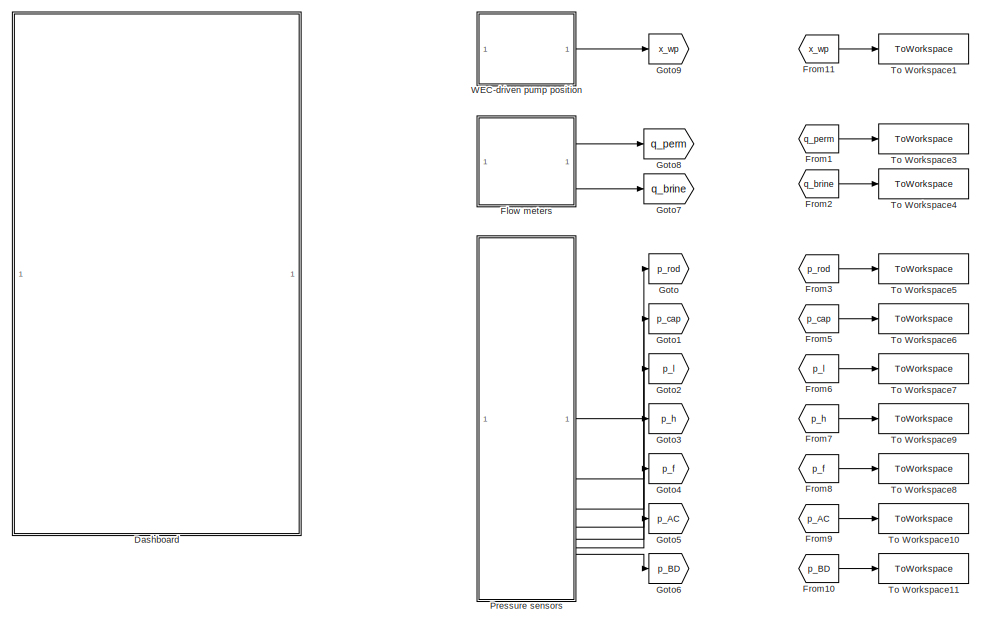
[diagram: root canvas - part 1/2, full width, top band]
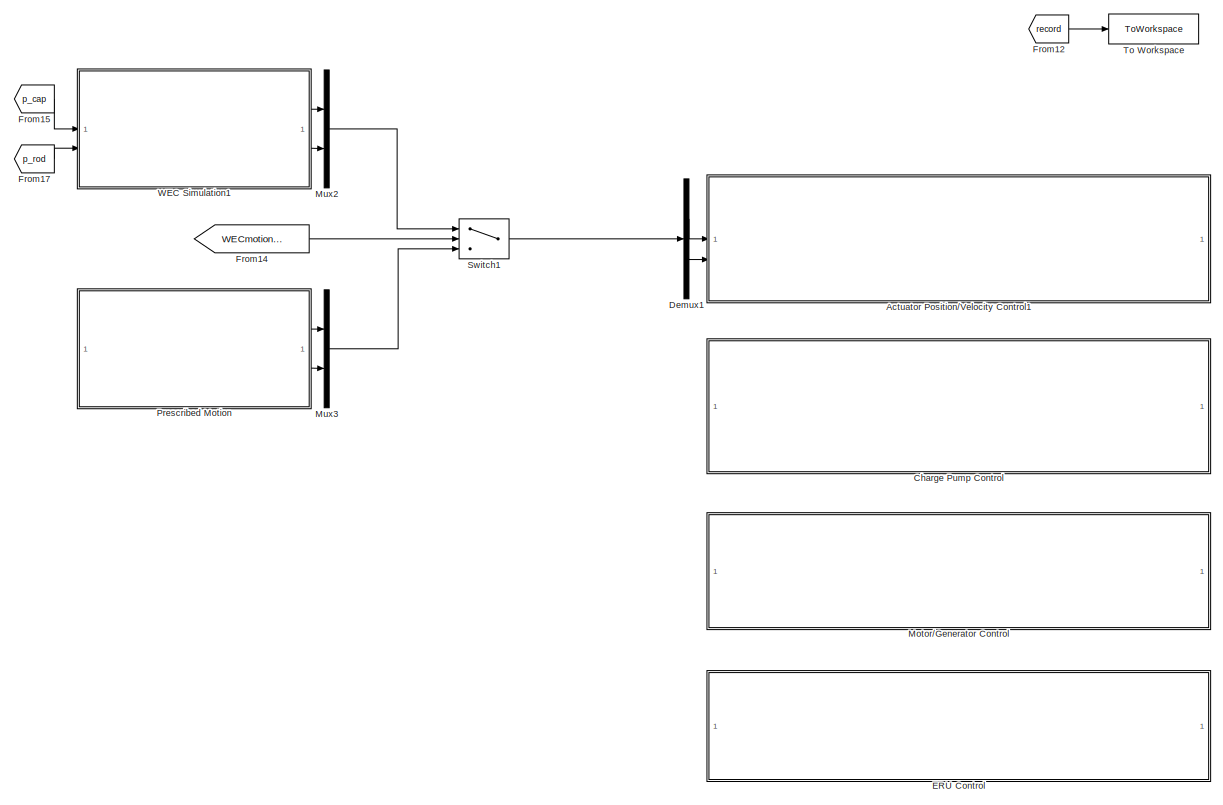
[diagram: root canvas - part 2/2, full width, bottom band]
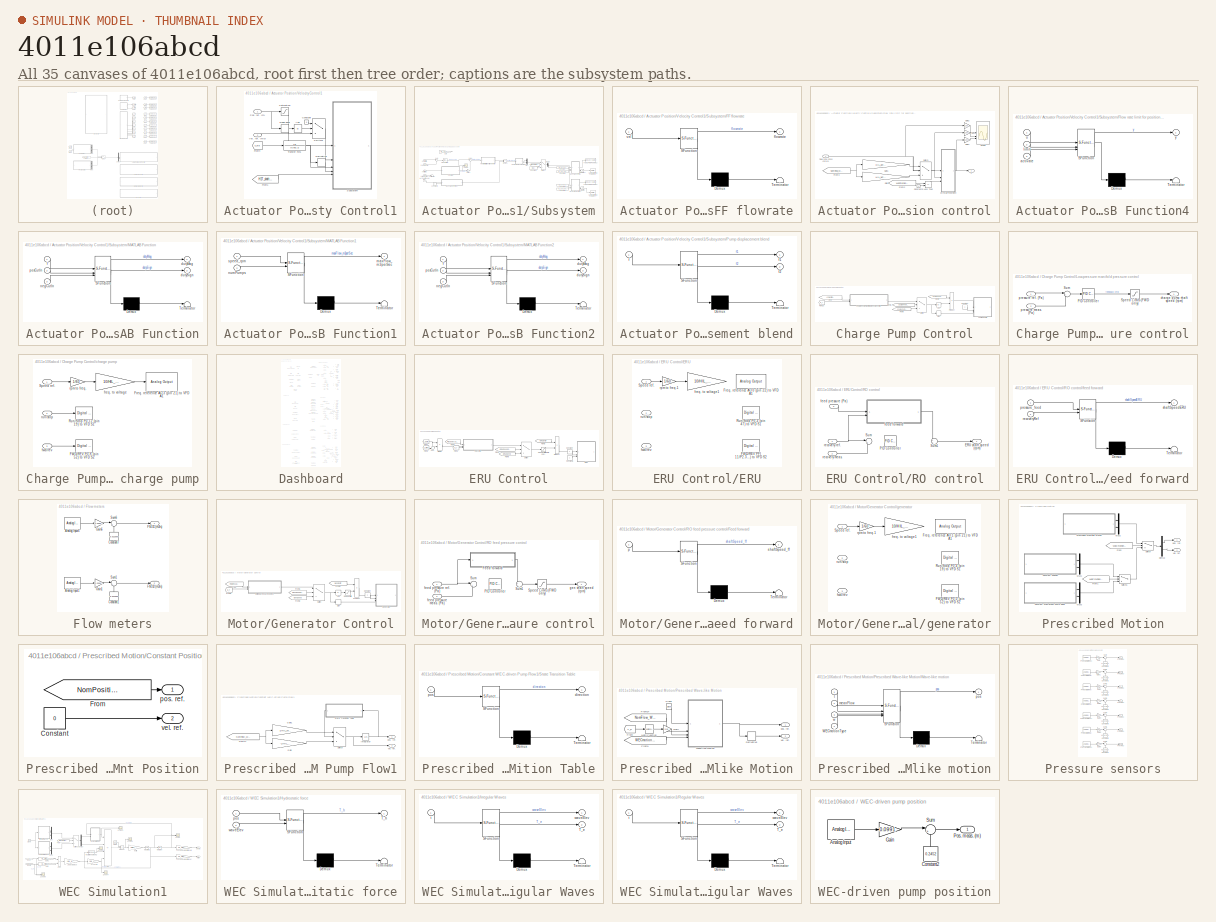
[diagram: thumbnail index - all 35 canvases of the model, root first then tree order]
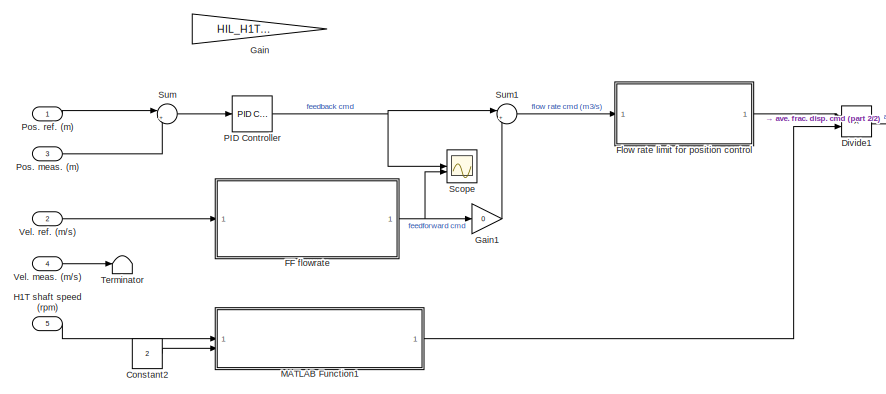
[diagram: Actuator Position/Velocity Control1/Subsystem - part 1/2, left side, full height]
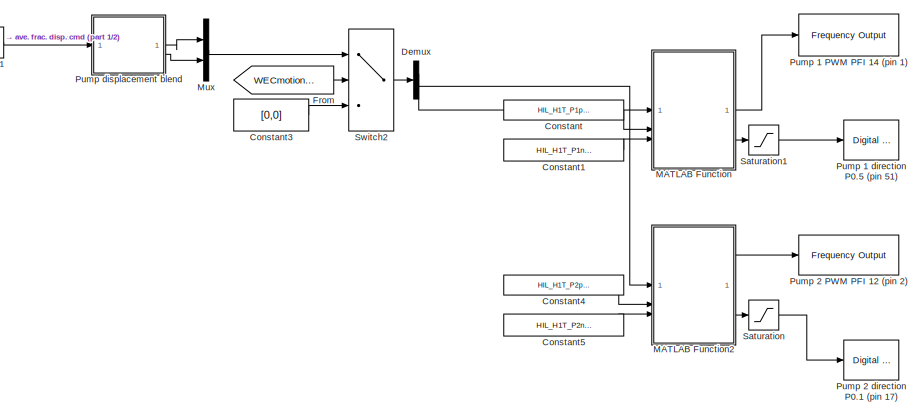
[diagram: Actuator Position/Velocity Control1/Subsystem - part 2/2, right side, full height]
MODEL slx_4011e106abcd
KIND model
CONFIG AbsTol = auto
CONFIG EnableMultiTasking = off
CONFIG FixedStep = 0.001
CONFIG InitFcn = addpath('SCADA'); \ninitFcn_SCADA;
CONFIG MaxStep = auto
CONFIG MinStep = auto
CONFIG RelTol = 1e-3
CONFIG SampleTimeConstraint = Unconstrained
CONFIG SolverName = FixedStepAuto
CONFIG StartTime = 0.0
CONFIG StopTime = inf
WORKSPACE source: mxarray member
WORKSPACE RadSysCoeff: Simulink.Parameter (value not decoded)
BLOCK [SubSystem] Actuator Position//Velocity Control1
BLOCK [Abs] Actuator Position//Velocity Control1/Abs
  SaturateOnIntegerOverflow = off
BLOCK [Constant] Actuator Position//Velocity Control1/Constant
  Value = 0
BLOCK [DeadZone] Actuator Position//Velocity Control1/Dead Zone
  LowerValue = HIL_WECpump_negativeCtrlLimit
  UpperValue = HIL_WECpump_positiveCtrlLimit
BLOCK [Derivative] Actuator Position//Velocity Control1/Derivative
BLOCK [From] Actuator Position//Velocity Control1/From1
  GotoTag = H1T_shaftSpeed
  TagVisibility = global
BLOCK [From] Actuator Position//Velocity Control1/From4
  GotoTag = x_wp
  TagVisibility = global
BLOCK [Inport] Actuator Position//Velocity Control1/Pos. ref. (m)
BLOCK [Saturate] Actuator Position//Velocity Control1/Saturation
  LowerLimit = HIL_WECpump_negativeCtrlLimit
  UpperLimit = HIL_WECpump_positiveCtrlLimit
BLOCK [SubSystem] Actuator Position//Velocity Control1/Subsystem
BLOCK [Constant] Actuator Position//Velocity Control1/Subsystem/Constant
  Value = HIL_H1T_P1posCutIn
BLOCK [Constant] Actuator Position//Velocity Control1/Subsystem/Constant1
  Value = HIL_H1T_P1negCutIn
BLOCK [Constant] Actuator Position//Velocity Control1/Subsystem/Constant2
  Value = 2
BLOCK [Constant] Actuator Position//Velocity Control1/Subsystem/Constant3
  Value = [0,0]
BLOCK [Constant] Actuator Position//Velocity Control1/Subsystem/Constant4
  Value = HIL_H1T_P2posCutIn
BLOCK [Constant] Actuator Position//Velocity Control1/Subsystem/Constant5
  Value = HIL_H1T_P2negCutIn
BLOCK [Demux] Actuator Position//Velocity Control1/Subsystem/Demux
  Outputs = 2
BLOCK [Product] Actuator Position//Velocity Control1/Subsystem/Divide1
  Inputs = */
BLOCK [SubSystem] Actuator Position//Velocity Control1/Subsystem/FF flowrate
  ErrorFcn = Stateflow.Translate.translate
  PermitHierarchicalResolution = ExplicitOnly
  SFBlockType = MATLAB Function
  TreatAsAtomicUnit = on
BLOCK [Demux] Actuator Position//Velocity Control1/Subsystem/FF flowrate/ Demux 
  Outputs = 1
BLOCK [S-Function] Actuator Position//Velocity Control1/Subsystem/FF flowrate/ SFunction 
  EnableBusSupport = off
  FunctionName = sf_sfun
  Parameters = HIL_act_A_cap,HIL_act_A_rod
  PortCounts = [1 2]
  SFcnIsStateOwnerBlock = off
  SFunctionDeploymentMode = off
  Tag = Stateflow S-Function 11
BLOCK [Terminator] Actuator Position//Velocity Control1/Subsystem/FF flowrate/ Terminator 
BLOCK [Outport] Actuator Position//Velocity Control1/Subsystem/FF flowrate/flowrate
BLOCK [Inport] Actuator Position//Velocity Control1/Subsystem/FF flowrate/vel
BLOCK [SubSystem] Actuator Position//Velocity Control1/Subsystem/Flow rate limit for position control
BLOCK [Constant] Actuator Position//Velocity Control1/Subsystem/Flow rate limit for position control/Constant6
BLOCK [From] Actuator Position//Velocity Control1/Subsystem/Flow rate limit for position control/From2
  GotoTag = WECmotionType
  TagVisibility = global
BLOCK [From] Actuator Position//Velocity Control1/Subsystem/Flow rate limit for position control/From3
  GotoTag = NomFlow_WECpump
  TagVisibility = global
BLOCK [Gain] Actuator Position//Velocity Control1/Subsystem/Flow rate limit for position control/Gain
  Gain = HIL_act_A_rod/HIL_WECpump_A_rod
BLOCK [Gain] Actuator Position//Velocity Control1/Subsystem/Flow rate limit for position control/Gain1
  Gain = HIL_act_A_cap/HIL_WECpump_A_cap
BLOCK [Gain] Actuator Position//Velocity Control1/Subsystem/Flow rate limit for position control/Gain2
  Gain = 1e3
BLOCK [Gain] Actuator Position//Velocity Control1/Subsystem/Flow rate limit for position control/Gain3
  Gain = 1e3
BLOCK [Gain] Actuator Position//Velocity Control1/Subsystem/Flow rate limit for position control/Gain4
  Gain = 1e3
BLOCK [RelationalOperator] Actuator Position//Velocity Control1/Subsystem/Flow rate limit for position control/Less Than
  InputSameDT = off
  Operator = ==
  OutDataTypeStr = boolean
  RndMeth = Simplest
BLOCK [SubSystem] Actuator Position//Velocity Control1/Subsystem/Flow rate limit for position control/MATLAB Function4
  ErrorFcn = Stateflow.Translate.translate
  PermitHierarchicalResolution = ExplicitOnly
  SFBlockType = MATLAB Function
  TreatAsAtomicUnit = on
BLOCK [Demux] Actuator Position//Velocity Control1/Subsystem/Flow rate limit for position control/MATLAB Function4/ Demux 
  Outputs = 1
BLOCK [S-Function] Actuator Position//Velocity Control1/Subsystem/Flow rate limit for position control/MATLAB Function4/ SFunction 
  EnableBusSupport = off
  FunctionName = sf_sfun
  PortCounts = [3 2]
  SFcnIsStateOwnerBlock = off
  SFunctionDeploymentMode = off
  Tag = Stateflow S-Function 12
BLOCK [Terminator] Actuator Position//Velocity Control1/Subsystem/Flow rate limit for position control/MATLAB Function4/ Terminator 
BLOCK [Inport] Actuator Position//Velocity Control1/Subsystem/Flow rate limit for position control/MATLAB Function4/activate
  Port = 3
BLOCK [Inport] Actuator Position//Velocity Control1/Subsystem/Flow rate limit for position control/MATLAB Function4/limit
  Port = 2
BLOCK [Inport] Actuator Position//Velocity Control1/Subsystem/Flow rate limit for position control/MATLAB Function4/u
BLOCK [Outport] Actuator Position//Velocity Control1/Subsystem/Flow rate limit for position control/MATLAB Function4/y
BLOCK [Scope] Actuator Position//Velocity Control1/Subsystem/Flow rate limit for position control/Scope
  DataLoggingDecimateData = on
  DataLoggingDecimation = 1
  DataLoggingLimitDataPoints = on
  DataLoggingSaveFormat = Array
  DataLoggingVariableName = ScopeData1
  Floating = off
  GraphicalSettings = {"GraphicalSettings":{"LegacySettings":true,"Style":{"Style":{"ActiveDisplayYMaximum":"0.93525","ActiveDisplayYMinimum":"-0.19035","MinimizeControls":"false","PlotType":"Auto"}}}}
  NumInputPorts = 3
  WasSavedAsWebScope = on
BLOCK [Switch] Actuator Position//Velocity Control1/Subsystem/Flow rate limit for position control/Switch
  Criteria = u2 > Threshold
  InputSameDT = off
  SaturateOnIntegerOverflow = off
BLOCK [Inport] Actuator Position//Velocity Control1/Subsystem/Flow rate limit for position control/flow rate cmd (m3//s)
BLOCK [Outport] Actuator Position//Velocity Control1/Subsystem/Flow rate limit for position control/y
BLOCK [From] Actuator Position//Velocity Control1/Subsystem/From
  GotoTag = WECmotionOnOff
  TagVisibility = global
BLOCK [Gain] Actuator Position//Velocity Control1/Subsystem/Gain
  Commented = on
  Gain = HIL_H1T_kp
BLOCK [Gain] Actuator Position//Velocity Control1/Subsystem/Gain1
  Gain = 0
BLOCK [Inport] Actuator Position//Velocity Control1/Subsystem/H1T shaft speed (rpm)
  Port = 5
BLOCK [SubSystem] Actuator Position//Velocity Control1/Subsystem/MATLAB Function
  ErrorFcn = Stateflow.Translate.translate
  PermitHierarchicalResolution = ExplicitOnly
  SFBlockType = MATLAB Function
  TreatAsAtomicUnit = on
BLOCK [Demux] Actuator Position//Velocity Control1/Subsystem/MATLAB Function/ Demux 
  Outputs = 1
BLOCK [S-Function] Actuator Position//Velocity Control1/Subsystem/MATLAB Function/ SFunction 
  EnableBusSupport = off
  FunctionName = sf_sfun
  PortCounts = [3 3]
  SFcnIsStateOwnerBlock = off
  SFunctionDeploymentMode = off
  Tag = Stateflow S-Function 13
BLOCK [Terminator] Actuator Position//Velocity Control1/Subsystem/MATLAB Function/ Terminator 
BLOCK [Outport] Actuator Position//Velocity Control1/Subsystem/MATLAB Function/dutyMag
BLOCK [Outport] Actuator Position//Velocity Control1/Subsystem/MATLAB Function/dutySign
  Port = 2
BLOCK [Inport] Actuator Position//Velocity Control1/Subsystem/MATLAB Function/f
BLOCK [Inport] Actuator Position//Velocity Control1/Subsystem/MATLAB Function/negCutIn
  Port = 3
BLOCK [Inport] Actuator Position//Velocity Control1/Subsystem/MATLAB Function/posCutIn
  Port = 2
BLOCK [SubSystem] Actuator Position//Velocity Control1/Subsystem/MATLAB Function1
  ErrorFcn = Stateflow.Translate.translate
  PermitHierarchicalResolution = ExplicitOnly
  SFBlockType = MATLAB Function
  TreatAsAtomicUnit = on
BLOCK [Demux] Actuator Position//Velocity Control1/Subsystem/MATLAB Function1/ Demux 
  Outputs = 1
BLOCK [S-Function] Actuator Position//Velocity Control1/Subsystem/MATLAB Function1/ SFunction 
  EnableBusSupport = off
  FunctionName = sf_sfun
  Parameters = HIL_H1T_D
  PortCounts = [2 2]
  SFcnIsStateOwnerBlock = off
  SFunctionDeploymentMode = off
  Tag = Stateflow S-Function 14
BLOCK [Terminator] Actuator Position//Velocity Control1/Subsystem/MATLAB Function1/ Terminator 
BLOCK [Outport] Actuator Position//Velocity Control1/Subsystem/MATLAB Function1/maxFlow_m3perSec
BLOCK [Inport] Actuator Position//Velocity Control1/Subsystem/MATLAB Function1/numPumps
  Port = 2
BLOCK [Inport] Actuator Position//Velocity Control1/Subsystem/MATLAB Function1/speed_rpm
BLOCK [SubSystem] Actuator Position//Velocity Control1/Subsystem/MATLAB Function2
  ErrorFcn = Stateflow.Translate.translate
  PermitHierarchicalResolution = ExplicitOnly
  SFBlockType = MATLAB Function
  TreatAsAtomicUnit = on
BLOCK [Demux] Actuator Position//Velocity Control1/Subsystem/MATLAB Function2/ Demux 
  Outputs = 1
BLOCK [S-Function] Actuator Position//Velocity Control1/Subsystem/MATLAB Function2/ SFunction 
  EnableBusSupport = off
  FunctionName = sf_sfun
  PortCounts = [3 3]
  SFcnIsStateOwnerBlock = off
  SFunctionDeploymentMode = off
  Tag = Stateflow S-Function 15
BLOCK [Terminator] Actuator Position//Velocity Control1/Subsystem/MATLAB Function2/ Terminator 
BLOCK [Outport] Actuator Position//Velocity Control1/Subsystem/MATLAB Function2/dutyMag
BLOCK [Outport] Actuator Position//Velocity Control1/Subsystem/MATLAB Function2/dutySign
  Port = 2
BLOCK [Inport] Actuator Position//Velocity Control1/Subsystem/MATLAB Function2/f
BLOCK [Inport] Actuator Position//Velocity Control1/Subsystem/MATLAB Function2/negCutIn
  Port = 3
BLOCK [Inport] Actuator Position//Velocity Control1/Subsystem/MATLAB Function2/posCutIn
  Port = 2
BLOCK [Mux] Actuator Position//Velocity Control1/Subsystem/Mux
  DisplayOption = bar
  Inputs = 2
BLOCK [Reference] Actuator Position//Velocity Control1/Subsystem/PID Controller  REF=slpidlib/PID Controller
  SourceBlock = slpidlib/PID Controller
  SourceType = PID 1dof
BLOCK [Inport] Actuator Position//Velocity Control1/Subsystem/Pos. meas. (m)
  Port = 3
  SampleTime = 0.01
BLOCK [Inport] Actuator Position//Velocity Control1/Subsystem/Pos. ref. (m)
  SampleTime = 0.01
BLOCK [Reference] Actuator Position//Velocity Control1/Subsystem/Pump 1 PWM PFI 14 (pin 1)  REF=sldrtlib/Frequency Output
  AttributesFormatString = National Instruments\nPCIe-6343 [auto]
  SourceBlock = sldrtlib/Frequency Output
  SourceType = Simulink Desktop Real-Time Frequency Output
BLOCK [Reference] Actuator Position//Velocity Control1/Subsystem/Pump 1 direction P0.5 (pin 51)  REF=sldrtlib/Digital Output
  AttributesFormatString = National Instruments\nPCIe-6343 [auto]
  SourceBlock = sldrtlib/Digital Output
  SourceType = Simulink Desktop Real-Time Digital Output
BLOCK [Reference] Actuator Position//Velocity Control1/Subsystem/Pump 2 PWM PFI 12 (pin 2)  REF=sldrtlib/Frequency Output
  AttributesFormatString = National Instruments\nPCIe-6343 [auto]
  SourceBlock = sldrtlib/Frequency Output
  SourceType = Simulink Desktop Real-Time Frequency Output
BLOCK [Reference] Actuator Position//Velocity Control1/Subsystem/Pump 2 direction P0.1 (pin 17)  REF=sldrtlib/Digital Output
  AttributesFormatString = National Instruments\nPCIe-6343 [auto]
  SourceBlock = sldrtlib/Digital Output
  SourceType = Simulink Desktop Real-Time Digital Output
BLOCK [SubSystem] Actuator Position//Velocity Control1/Subsystem/Pump displacement blend
  ErrorFcn = Stateflow.Translate.translate
  PermitHierarchicalResolution = ExplicitOnly
  SFBlockType = MATLAB Function
  TreatAsAtomicUnit = on
BLOCK [Demux] Actuator Position//Velocity Control1/Subsystem/Pump displacement blend/ Demux 
  Outputs = 1
BLOCK [S-Function] Actuator Position//Velocity Control1/Subsystem/Pump displacement blend/ SFunction 
  EnableBusSupport = off
  FunctionName = sf_sfun
  Parameters = HIL_H1T_P1fBias,HIL_H1T_P2fBias
  PortCounts = [1 3]
  SFcnIsStateOwnerBlock = off
  SFunctionDeploymentMode = off
  Tag = Stateflow S-Function 16
BLOCK [Terminator] Actuator Position//Velocity Control1/Subsystem/Pump displacement blend/ Terminator 
BLOCK [Inport] Actuator Position//Velocity Control1/Subsystem/Pump displacement blend/f
BLOCK [Outport] Actuator Position//Velocity Control1/Subsystem/Pump displacement blend/f1
BLOCK [Outport] Actuator Position//Velocity Control1/Subsystem/Pump displacement blend/f2
  Port = 2
BLOCK [Saturate] Actuator Position//Velocity Control1/Subsystem/Saturation
  LowerLimit = 0
  UpperLimit = 1
BLOCK [Saturate] Actuator Position//Velocity Control1/Subsystem/Saturation1
  LowerLimit = 0
  UpperLimit = 1
BLOCK [Scope] Actuator Position//Velocity Control1/Subsystem/Scope
  DataLoggingDecimateData = on
  DataLoggingDecimation = 1
  DataLoggingLimitDataPoints = on
  DataLoggingSaveFormat = Array
  DataLoggingVariableName = ScopeData1
  Floating = off
  GraphicalSettings = {"GraphicalSettings":{"LegacySettings":true,"Style":{"Style":{"ActiveDisplayYMaximum":"0.00375","ActiveDisplayYMinimum":"-0.00375","MinimizeControls":"false","PlotType":"Auto"}}}}
  NumInputPorts = 2
  WasSavedAsWebScope = on
BLOCK [Sum] Actuator Position//Velocity Control1/Subsystem/Sum
  Inputs = |+-
BLOCK [Sum] Actuator Position//Velocity Control1/Subsystem/Sum1
  Inputs = |++
BLOCK [Switch] Actuator Position//Velocity Control1/Subsystem/Switch2
  InputSameDT = off
  SaturateOnIntegerOverflow = off
  Threshold = 1
BLOCK [Terminator] Actuator Position//Velocity Control1/Subsystem/Terminator
BLOCK [Inport] Actuator Position//Velocity Control1/Subsystem/Vel. meas. (m//s)
  Port = 4
  SampleTime = 0.01
BLOCK [Inport] Actuator Position//Velocity Control1/Subsystem/Vel. ref. (m//s)
  Port = 2
  SampleTime = 0.01
BLOCK [Switch] Actuator Position//Velocity Control1/Switch1
  Criteria = u2 > Threshold
  InputSameDT = off
  SaturateOnIntegerOverflow = off
BLOCK [TransferFcn] Actuator Position//Velocity Control1/Transfer Fcn1
  Denominator = [0.001 1]
BLOCK [Inport] Actuator Position//Velocity Control1/Vel. ref. (m//s)
  Port = 2
BLOCK [SubSystem] Charge Pump Control
  Commented = on
BLOCK [Abs] Charge Pump Control/Abs
  SaturateOnIntegerOverflow = off
BLOCK [Constant] Charge Pump Control/Constant
BLOCK [From] Charge Pump Control/From
  GotoTag = LPManifoldPressureRef
BLOCK [From] Charge Pump Control/From10
  GotoTag = p_l
  TagVisibility = global
BLOCK [From] Charge Pump Control/From6
  GotoTag = ChargePumpSpeedOrPressure
BLOCK [From] Charge Pump Control/From8
  GotoTag = ChargePumpSpeed
BLOCK [From] Charge Pump Control/From9
  GotoTag = ChargePumpOnOff
BLOCK [SubSystem] Charge Pump Control/Low-pressure manifold pressure control
BLOCK [Reference] Charge Pump Control/Low-pressure manifold pressure control/PID Controller  REF=slpidlib/PID Controller
  SourceBlock = slpidlib/PID Controller
  SourceType = PID 1dof
BLOCK [Saturate] Charge Pump Control/Low-pressure manifold pressure control/Speed Limits (FWD only)
  LowerLimit = HIL_charge_nMin
  UpperLimit = HIL_charge_nMax
BLOCK [Sum] Charge Pump Control/Low-pressure manifold pressure control/Sum
  Inputs = |+-
BLOCK [Outport] Charge Pump Control/Low-pressure manifold pressure control/charge pump shaft speed (rpm)
BLOCK [Inport] Charge Pump Control/Low-pressure manifold pressure control/pressure meas. (Pa)
  Port = 2
BLOCK [Inport] Charge Pump Control/Low-pressure manifold pressure control/pressure ref. (Pa)
BLOCK [Product] Charge Pump Control/Product
BLOCK [Signum] Charge Pump Control/Sign
BLOCK [Switch] Charge Pump Control/Switch
  Criteria = u2 > Threshold
  InputSameDT = off
  SaturateOnIntegerOverflow = off
BLOCK [SubSystem] Charge Pump Control/charge pump
BLOCK [Reference] Charge Pump Control/charge pump/FWD//REV P0.8 (pin 52) to VFD S2  REF=sldrtlib/Digital Output
  AttributesFormatString = National Instruments\nPCIe-6343 [auto]
  SourceBlock = sldrtlib/Digital Output
  SourceType = Simulink Desktop Real-Time Digital Output
BLOCK [Reference] Charge Pump Control/charge pump/Freq. reference AO 3 (pin 21) to VFD A1   REF=sldrtlib/Analog Output
  AttributesFormatString = National Instruments\nPCIe-6343 [auto]
  SourceBlock = sldrtlib/Analog Output
  SourceType = Simulink Desktop Real-Time Analog Output
BLOCK [Reference] Charge Pump Control/charge pump/Run//Stop P0.12 (pin 19) to VFD S1  REF=sldrtlib/Digital Output
  AttributesFormatString = National Instruments\nPCIe-6343 [auto]
  SourceBlock = sldrtlib/Digital Output
  SourceType = Simulink Desktop Real-Time Digital Output
BLOCK [Inport] Charge Pump Control/charge pump/Speed ref.
BLOCK [Gain] Charge Pump Control/charge pump/freq. to voltage
  Gain = 10/HIL_charge_nMax
BLOCK [Inport] Charge Pump Control/charge pump/fwd//rev
  Port = 3
BLOCK [Gain] Charge Pump Control/charge pump/rpm to freq.
  Gain = 1/60
BLOCK [Inport] Charge Pump Control/charge pump/run//stop
  Port = 2
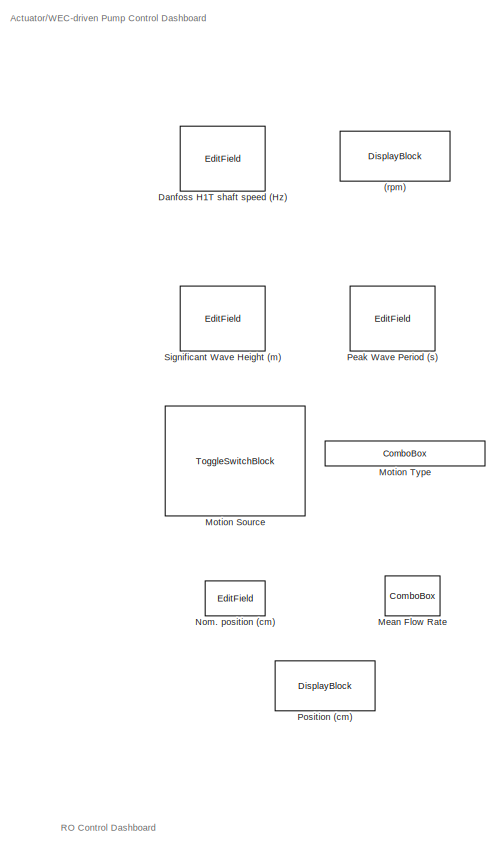
[diagram: Dashboard - part 1/5, top left region]
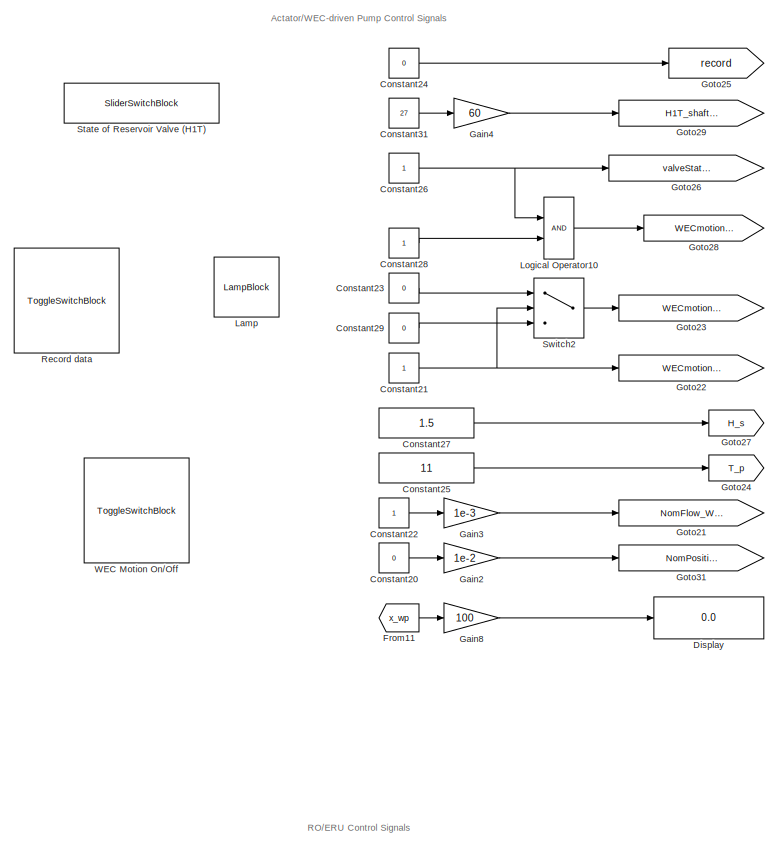
[diagram: Dashboard - part 2/5, top right region]
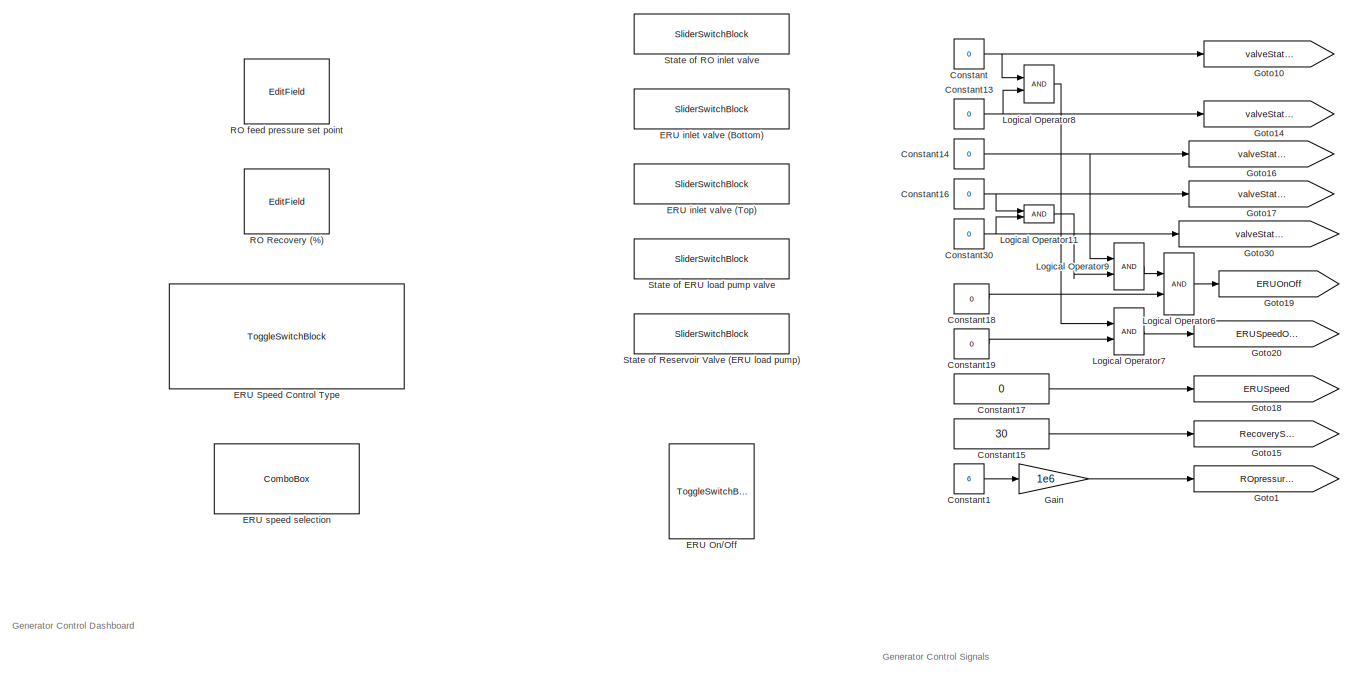
[diagram: Dashboard - part 3/5, full width, middle band]
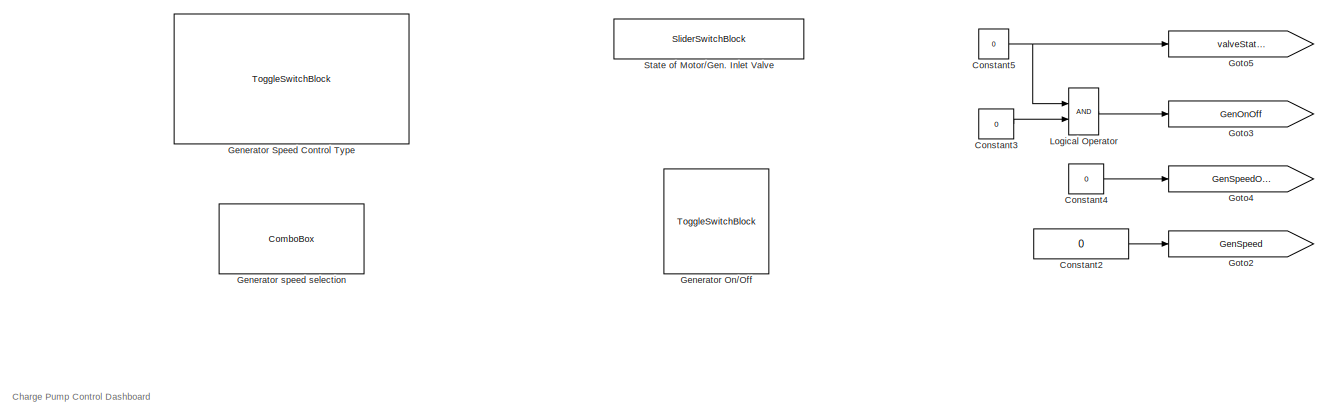
[diagram: Dashboard - part 4/5, full width, bottom band]
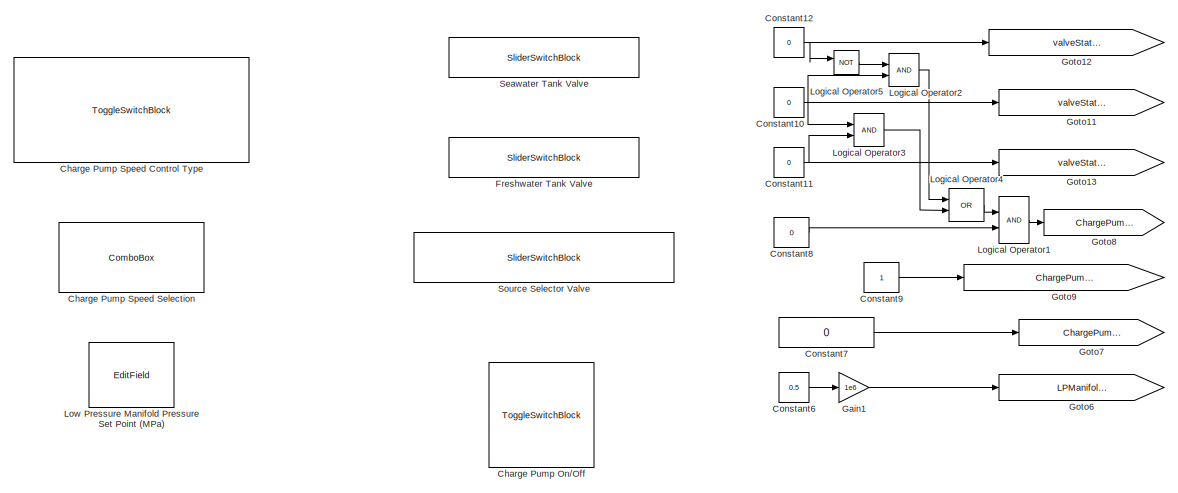
[diagram: Dashboard - part 5/5, full width, bottom band]
BLOCK [SubSystem] Dashboard
BLOCK [DisplayBlock] Dashboard/(rpm)
  Format = long
  GridColor = [0.502, 0.502, 0.502]
  LabelPosition = Hide
  NameLocation = top
  Transparency = 1
BLOCK [ToggleSwitchBlock] Dashboard/Charge Pump On//Off
  Commented = on
  LabelPosition = Hide
  NameLocation = top
BLOCK [ToggleSwitchBlock] Dashboard/Charge Pump Speed Control Type
  Commented = on
  LabelPosition = Hide
  NameLocation = top
BLOCK [ComboBox] Dashboard/Charge Pump Speed Selection
  Commented = on
  LabelPosition = Hide
  NameLocation = top
  SelectedLabel = 0 rpm
BLOCK [Constant] Dashboard/Constant
  Commented = on
  Value = 0
BLOCK [Constant] Dashboard/Constant1
  Commented = on
  Value = 6
BLOCK [Constant] Dashboard/Constant10
  Commented = on
  Value = 0
BLOCK [Constant] Dashboard/Constant11
  Commented = on
  Value = 0
BLOCK [Constant] Dashboard/Constant12
  Commented = on
  Value = 0
BLOCK [Constant] Dashboard/Constant13
  Commented = on
  Value = 0
BLOCK [Constant] Dashboard/Constant14
  Commented = on
  Value = 0
BLOCK [Constant] Dashboard/Constant15
  Commented = on
  Value = 30
BLOCK [Constant] Dashboard/Constant16
  Commented = on
  Value = 0
BLOCK [Constant] Dashboard/Constant17
  Commented = on
  Value = 0
BLOCK [Constant] Dashboard/Constant18
  Commented = on
  Value = 0
BLOCK [Constant] Dashboard/Constant19
  Commented = on
  Value = 0
BLOCK [Constant] Dashboard/Constant2
  Commented = on
  Value = 0
BLOCK [Constant] Dashboard/Constant20
  Value = 0
BLOCK [Constant] Dashboard/Constant21
BLOCK [Constant] Dashboard/Constant22
BLOCK [Constant] Dashboard/Constant23
  Value = 0
BLOCK [Constant] Dashboard/Constant24
  Value = 0
BLOCK [Constant] Dashboard/Constant25
  Value = 11
BLOCK [Constant] Dashboard/Constant26
BLOCK [Constant] Dashboard/Constant27
  Value = 1.5
BLOCK [Constant] Dashboard/Constant28
BLOCK [Constant] Dashboard/Constant29
  Value = 0
BLOCK [Constant] Dashboard/Constant3
  Commented = on
  Value = 0
BLOCK [Constant] Dashboard/Constant30
  Commented = on
  Value = 0
BLOCK [Constant] Dashboard/Constant31
  Value = 27
BLOCK [Constant] Dashboard/Constant4
  Commented = on
  Value = 0
BLOCK [Constant] Dashboard/Constant5
  Commented = on
  Value = 0
BLOCK [Constant] Dashboard/Constant6
  Commented = on
  Value = 0.5
BLOCK [Constant] Dashboard/Constant7
  Commented = on
  Value = 0
BLOCK [Constant] Dashboard/Constant8
  Commented = on
  Value = 0
BLOCK [Constant] Dashboard/Constant9
  Commented = on
BLOCK [EditField] Dashboard/Danfoss H1T shaft speed (Hz)
  Alignment = Center
  LabelPosition = Hide
  NameLocation = top
  ShowInitialText = on
BLOCK [Display] Dashboard/Display
  Decimation = 1
BLOCK [ToggleSwitchBlock] Dashboard/ERU On//Off
  Commented = on
  LabelPosition = Hide
  NameLocation = top
BLOCK [ToggleSwitchBlock] Dashboard/ERU Speed Control Type
  Commented = on
  LabelPosition = Hide
  NameLocation = top
BLOCK [SliderSwitchBlock] Dashboard/ERU inlet valve (Bottom)
  Commented = on
  LabelPosition = Hide
  NameLocation = top
BLOCK [SliderSwitchBlock] Dashboard/ERU inlet valve (Top)
  Commented = on
  LabelPosition = Hide
  NameLocation = top
BLOCK [ComboBox] Dashboard/ERU speed selection
  Commented = on
  LabelPosition = Hide
  NameLocation = top
  SelectedLabel = 0 rpm
BLOCK [SliderSwitchBlock] Dashboard/Freshwater Tank Valve
  Commented = on
  LabelPosition = Hide
  NameLocation = top
BLOCK [From] Dashboard/From11
  GotoTag = x_wp
  TagVisibility = global
BLOCK [Gain] Dashboard/Gain
  Commented = on
  Gain = 1e6
BLOCK [Gain] Dashboard/Gain1
  Commented = on
  Gain = 1e6
BLOCK [Gain] Dashboard/Gain2
  Gain = 1e-2
BLOCK [Gain] Dashboard/Gain3
  Gain = 1e-3
BLOCK [Gain] Dashboard/Gain4
  Gain = 60
BLOCK [Gain] Dashboard/Gain8
  Gain = 100
BLOCK [ToggleSwitchBlock] Dashboard/Generator On//Off
  Commented = on
  LabelPosition = Hide
  NameLocation = top
BLOCK [ToggleSwitchBlock] Dashboard/Generator Speed Control Type
  Commented = on
  LabelPosition = Hide
  NameLocation = top
BLOCK [ComboBox] Dashboard/Generator speed selection
  Commented = on
  LabelPosition = Hide
  NameLocation = top
  SelectedLabel = 0 rpm
BLOCK [Goto] Dashboard/Goto1
  Commented = on
  GotoTag = ROpressureRef
  TagVisibility = global
BLOCK [Goto] Dashboard/Goto10
  Commented = on
  GotoTag = valveState_ROinlet
  TagVisibility = global
BLOCK [Goto] Dashboard/Goto11
  Commented = on
  GotoTag = valveState_SourceSelect
  TagVisibility = global
BLOCK [Goto] Dashboard/Goto12
  Commented = on
  GotoTag = valveState_FreshwaterTank
  TagVisibility = global
BLOCK [Goto] Dashboard/Goto13
  Commented = on
  GotoTag = valveState_SeawaterTank
  TagVisibility = global
BLOCK [Goto] Dashboard/Goto14
  Commented = on
  GotoTag = valveState_ERUtop
  TagVisibility = global
BLOCK [Goto] Dashboard/Goto15
  Commented = on
  GotoTag = RecoverySetPoint
  TagVisibility = global
BLOCK [Goto] Dashboard/Goto16
  Commented = on
  GotoTag = valveState_ERUbottom
  TagVisibility = global
BLOCK [Goto] Dashboard/Goto17
  Commented = on
  GotoTag = valveState_ERUloadPump
  TagVisibility = global
BLOCK [Goto] Dashboard/Goto18
  Commented = on
  GotoTag = ERUSpeed
  TagVisibility = global
BLOCK [Goto] Dashboard/Goto19
  Commented = on
  GotoTag = ERUOnOff
  TagVisibility = global
BLOCK [Goto] Dashboard/Goto2
  Commented = on
  GotoTag = GenSpeed
  TagVisibility = global
BLOCK [Goto] Dashboard/Goto20
  Commented = on
  GotoTag = ERUSpeedOrRecovery
  TagVisibility = global
BLOCK [Goto] Dashboard/Goto21
  GotoTag = NomFlow_WECpump
  TagVisibility = global
BLOCK [Goto] Dashboard/Goto22
  GotoTag = WECmotionType
  TagVisibility = global
BLOCK [Goto] Dashboard/Goto23
  GotoTag = WECmotionSource
  TagVisibility = global
BLOCK [Goto] Dashboard/Goto24
  GotoTag = T_p
  TagVisibility = global
BLOCK [Goto] Dashboard/Goto25
  GotoTag = record
  TagVisibility = global
BLOCK [Goto] Dashboard/Goto26
  Commented = on
  GotoTag = valveState_H1Treservoir
BLOCK [Goto] Dashboard/Goto27
  Commented = on
  GotoTag = H_s
  TagVisibility = global
BLOCK [Goto] Dashboard/Goto28
  GotoTag = WECmotionOnOff
  TagVisibility = global
BLOCK [Goto] Dashboard/Goto29
  GotoTag = H1T_shaftSpeed
  TagVisibility = global
BLOCK [Goto] Dashboard/Goto3
  Commented = on
  GotoTag = GenOnOff
  TagVisibility = global
BLOCK [Goto] Dashboard/Goto30
  Commented = on
  GotoTag = valveState_ERUloadPumpRes
  TagVisibility = global
BLOCK [Goto] Dashboard/Goto31
  GotoTag = NomPosition_WECpump
  TagVisibility = global
BLOCK [Goto] Dashboard/Goto4
  Commented = on
  GotoTag = GenSpeedOrPressure
  TagVisibility = global
BLOCK [Goto] Dashboard/Goto5
  Commented = on
  GotoTag = valveState_motorGenInlet
  TagVisibility = global
BLOCK [Goto] Dashboard/Goto6
  Commented = on
  GotoTag = LPManifoldPressureRef
  TagVisibility = global
BLOCK [Goto] Dashboard/Goto7
  Commented = on
  GotoTag = ChargePumpSpeed
  TagVisibility = global
BLOCK [Goto] Dashboard/Goto8
  Commented = on
  GotoTag = ChargePumpOnOff
  TagVisibility = global
BLOCK [Goto] Dashboard/Goto9
  Commented = on
  GotoTag = ChargePumpSpeedOrPressure
  TagVisibility = global
BLOCK [LampBlock] Dashboard/Lamp
  DefaultColor = [192.0, 192.0, 192.0]
  LabelPosition = Hide
BLOCK [Logic] Dashboard/Logical Operator
  AllPortsSameDT = off
  Commented = on
  OutDataTypeStr = boolean
BLOCK [Logic] Dashboard/Logical Operator1
  AllPortsSameDT = off
  Commented = on
  OutDataTypeStr = boolean
BLOCK [Logic] Dashboard/Logical Operator10
  AllPortsSameDT = off
  OutDataTypeStr = boolean
BLOCK [Logic] Dashboard/Logical Operator11
  AllPortsSameDT = off
  Commented = on
  OutDataTypeStr = boolean
BLOCK [Logic] Dashboard/Logical Operator2
  AllPortsSameDT = off
  Commented = on
  OutDataTypeStr = boolean
BLOCK [Logic] Dashboard/Logical Operator3
  AllPortsSameDT = off
  Commented = on
  OutDataTypeStr = boolean
BLOCK [Logic] Dashboard/Logical Operator4
  AllPortsSameDT = off
  Commented = on
  Operator = OR
  OutDataTypeStr = boolean
BLOCK [Logic] Dashboard/Logical Operator5
  AllPortsSameDT = off
  Commented = on
  Operator = NOT
  OutDataTypeStr = boolean
BLOCK [Logic] Dashboard/Logical Operator6
  AllPortsSameDT = off
  Commented = on
  OutDataTypeStr = boolean
BLOCK [Logic] Dashboard/Logical Operator7
  AllPortsSameDT = off
  Commented = on
  OutDataTypeStr = boolean
BLOCK [Logic] Dashboard/Logical Operator8
  AllPortsSameDT = off
  Commented = on
  OutDataTypeStr = boolean
BLOCK [Logic] Dashboard/Logical Operator9
  AllPortsSameDT = off
  Commented = on
  OutDataTypeStr = boolean
BLOCK [EditField] Dashboard/Low Pressure Manifold Pressure Set Point (MPa)
  Alignment = Center
  Commented = on
  LabelPosition = Hide
  NameLocation = top
  ShowInitialText = on
BLOCK [ComboBox] Dashboard/Mean Flow Rate
  LabelPosition = Hide
  NameLocation = top
  SelectedLabel = 1 L/s
BLOCK [ToggleSwitchBlock] Dashboard/Motion Source
  LabelPosition = Hide
  NameLocation = top
BLOCK [ComboBox] Dashboard/Motion Type
  LabelPosition = Hide
  NameLocation = top
  SelectedLabel = Position, Constant
BLOCK [EditField] Dashboard/Nom. position (cm)
  Alignment = Center
  LabelPosition = Hide
  NameLocation = top
  ShowInitialText = on
BLOCK [EditField] Dashboard/Peak Wave Period (s)
  Alignment = Center
  LabelPosition = Hide
  NameLocation = top
  ShowInitialText = on
BLOCK [DisplayBlock] Dashboard/Position (cm)
  Format = long
  GridColor = [0.502, 0.502, 0.502]
  LabelPosition = Hide
  NameLocation = top
  Transparency = 1
BLOCK [EditField] Dashboard/RO Recovery (%)
  Alignment = Center
  Commented = on
  LabelPosition = Hide
  NameLocation = top
  ShowInitialText = on
BLOCK [EditField] Dashboard/RO feed pressure set point
  Alignment = Center
  Commented = on
  LabelPosition = Hide
  NameLocation = top
  ShowInitialText = on
BLOCK [ToggleSwitchBlock] Dashboard/Record data
  LabelPosition = Hide
  NameLocation = top
BLOCK [SliderSwitchBlock] Dashboard/Seawater Tank Valve
  Commented = on
  LabelPosition = Hide
  NameLocation = top
BLOCK [EditField] Dashboard/Significant Wave Height (m)
  Alignment = Center
  LabelPosition = Hide
  NameLocation = top
  ShowInitialText = on
BLOCK [SliderSwitchBlock] Dashboard/Source Selector Valve
  Commented = on
  LabelPosition = Hide
  NameLocation = top
BLOCK [SliderSwitchBlock] Dashboard/State of ERU load pump valve
  Commented = on
  LabelPosition = Hide
  NameLocation = top
BLOCK [SliderSwitchBlock] Dashboard/State of Motor//Gen. Inlet Valve
  Commented = on
  LabelPosition = Hide
  NameLocation = top
BLOCK [SliderSwitchBlock] Dashboard/State of RO inlet valve
  Commented = on
  LabelPosition = Hide
  NameLocation = top
BLOCK [SliderSwitchBlock] Dashboard/State of Reservoir Valve (ERU load pump)
  Commented = on
  LabelPosition = Hide
  NameLocation = top
BLOCK [SliderSwitchBlock] Dashboard/State of Reservoir Valve (H1T)
  LabelPosition = Hide
  NameLocation = top
BLOCK [Switch] Dashboard/Switch2
  InputSameDT = off
  SaturateOnIntegerOverflow = off
  Threshold = 2
BLOCK [ToggleSwitchBlock] Dashboard/WEC Motion On//Off
  LabelPosition = Hide
  NameLocation = top
BLOCK [Demux] Demux1
  Outputs = 2
BLOCK [SubSystem] ERU Control
  Commented = on
BLOCK [Constant] ERU Control/Constant
BLOCK [Constant] ERU Control/Constant1
BLOCK [Product] ERU Control/Divide
  Inputs = */
BLOCK [SubSystem] ERU Control/ERU
BLOCK [Reference] ERU Control/ERU/FWD//REV PFI 11//P2.3 (pin 46) to VFD S2  REF=sldrtlib/Digital Output
  SourceBlock = sldrtlib/Digital Output
  SourceType = Simulink Desktop Real-Time Digital Output
BLOCK [Reference] ERU Control/ERU/Freq. reference AO 0 (pin 22) to VFD A1   REF=daqlib/Analog Output
  SourceBlock = daqlib/Analog Output
  SourceType = Analog Output
BLOCK [Reference] ERU Control/ERU/Run//Stop P0.3 (pin 47) to VFD S1  REF=sldrtlib/Digital Output
  SourceBlock = sldrtlib/Digital Output
  SourceType = Simulink Desktop Real-Time Digital Output
BLOCK [Inport] ERU Control/ERU/Speed ref.
BLOCK [Gain] ERU Control/ERU/freq. to voltage1
  Gain = 10/HIL_ERU_nMax
BLOCK [Inport] ERU Control/ERU/fwd//rev
  Port = 3
BLOCK [Gain] ERU Control/ERU/rpm to freq.1
  Gain = 1/60
BLOCK [Inport] ERU Control/ERU/run//stop
  Port = 2
BLOCK [From] ERU Control/From1
  GotoTag = p_f
BLOCK [From] ERU Control/From2
  GotoTag = q_perm
BLOCK [From] ERU Control/From3
  GotoTag = q_brine
BLOCK [From] ERU Control/From4
  GotoTag = ERUSpeedOrRecovery
  TagVisibility = global
BLOCK [From] ERU Control/From5
  GotoTag = ERUSpeed
  TagVisibility = global
BLOCK [From] ERU Control/From6
  GotoTag = ERUOnOff
  TagVisibility = global
BLOCK [From] ERU Control/From7
  GotoTag = RecoverySetPoint
  TagVisibility = global
BLOCK [Product] ERU Control/Product
BLOCK [SubSystem] ERU Control/RO control
BLOCK [Outport] ERU Control/RO control/ERU shaft speed (rpm)
BLOCK [Reference] ERU Control/RO control/PID Controller  REF=slpidlib/PID Controller
  SourceBlock = slpidlib/PID Controller
  SourceType = PID 1dof
BLOCK [Sum] ERU Control/RO control/Sum
  Inputs = |+-
BLOCK [Sum] ERU Control/RO control/Sum1
  Inputs = ++|
BLOCK [SubSystem] ERU Control/RO control/feed forward
  ErrorFcn = Stateflow.Translate.translate
  PermitHierarchicalResolution = ExplicitOnly
  SFBlockType = MATLAB Function
  TreatAsAtomicUnit = on
BLOCK [Demux] ERU Control/RO control/feed forward/ Demux 
  Outputs = 1
BLOCK [S-Function] ERU Control/RO control/feed forward/ SFunction 
  EnableBusSupport = off
  FunctionName = sf_sfun
  PortCounts = [2 2]
  SFcnIsStateOwnerBlock = off
  SFunctionDeploymentMode = off
  Tag = Stateflow S-Function 4
BLOCK [Terminator] ERU Control/RO control/feed forward/ Terminator 
BLOCK [Inport] ERU Control/RO control/feed forward/pressure_feed
BLOCK [Inport] ERU Control/RO control/feed forward/recoveryRef
  Port = 2
BLOCK [Outport] ERU Control/RO control/feed forward/shaftSpeedERU
BLOCK [Inport] ERU Control/RO control/feed pressure (Pa)
  Port = 3
BLOCK [Inport] ERU Control/RO control/recovery meas.
  Port = 2
BLOCK [Inport] ERU Control/RO control/recovery ref.
BLOCK [Saturate] ERU Control/Speed Limits (FWD only)
  LowerLimit = HIL_ERU_nMin
  UpperLimit = HIL_ERU_nMax
BLOCK [Sum] ERU Control/Sum
  Inputs = ++|
BLOCK [Switch] ERU Control/Switch
  Criteria = u2 > Threshold
  InputSameDT = off
  SaturateOnIntegerOverflow = off
BLOCK [SubSystem] Flow meters
BLOCK [Reference] Flow meters/Analog Input1  REF=sldrtlib/Analog Input
  AttributesFormatString = National Instruments\nPCIe-6343 [auto]
  SourceBlock = sldrtlib/Analog Input
  SourceType = Simulink Desktop Real-Time Analog Input
BLOCK [Reference] Flow meters/Analog Input6  REF=sldrtlib/Analog Input
  AttributesFormatString = National Instruments\nPCIe-6343 [auto]
  SourceBlock = sldrtlib/Analog Input
  SourceType = Simulink Desktop Real-Time Analog Input
BLOCK [Constant] Flow meters/Constant1
  NameLocation = right
  Value = -8.8225e6
BLOCK [Constant] Flow meters/Constant7
  NameLocation = right
  Value = -8.8225e6
BLOCK [Outport] Flow meters/FM-01 (m3//s)
BLOCK [Outport] Flow meters/FM-02 (m3//s)
  Port = 2
BLOCK [Gain] Flow meters/Gain1
  Gain = -4.6366e06
BLOCK [Gain] Flow meters/Gain6
  Gain = -4.6366e6
BLOCK [Sum] Flow meters/Sum1
  Inputs = |++
BLOCK [Sum] Flow meters/Sum6
  Inputs = |++
BLOCK [From] From1
  GotoTag = q_perm
BLOCK [From] From10
  GotoTag = p_BD
BLOCK [From] From11
  GotoTag = x_wp
  TagVisibility = global
BLOCK [From] From12
  GotoTag = record
  TagVisibility = global
BLOCK [From] From14
  GotoTag = WECmotionSource
  TagVisibility = global
BLOCK [From] From15
  GotoTag = p_cap
BLOCK [From] From17
  GotoTag = p_rod
BLOCK [From] From2
  GotoTag = q_brine
BLOCK [From] From3
  GotoTag = p_rod
BLOCK [From] From5
  GotoTag = p_cap
BLOCK [From] From6
  GotoTag = p_l
  TagVisibility = global
BLOCK [From] From7
  GotoTag = p_h
BLOCK [From] From8
  GotoTag = p_f
BLOCK [From] From9
  GotoTag = p_AC
BLOCK [Goto] Goto
  GotoTag = p_rod
BLOCK [Goto] Goto1
  GotoTag = p_cap
BLOCK [Goto] Goto2
  GotoTag = p_l
  TagVisibility = global
BLOCK [Goto] Goto3
  GotoTag = p_h
BLOCK [Goto] Goto4
  GotoTag = p_f
BLOCK [Goto] Goto5
  GotoTag = p_AC
BLOCK [Goto] Goto6
  GotoTag = p_BD
BLOCK [Goto] Goto7
  GotoTag = q_brine
BLOCK [Goto] Goto8
  GotoTag = q_perm
BLOCK [Goto] Goto9
  GotoTag = x_wp
  TagVisibility = global
BLOCK [SubSystem] Motor//Generator Control
  Commented = on
BLOCK [Abs] Motor//Generator Control/Abs
  SaturateOnIntegerOverflow = off
BLOCK [Constant] Motor//Generator Control/Constant
BLOCK [From] Motor//Generator Control/From
  GotoTag = ROpressureRef
  TagVisibility = global
BLOCK [From] Motor//Generator Control/From1
  GotoTag = GenSpeedOrPressure
  TagVisibility = global
BLOCK [From] Motor//Generator Control/From2
  GotoTag = GenSpeed
  TagVisibility = global
BLOCK [From] Motor//Generator Control/From3
  GotoTag = GenOnOff
  TagVisibility = global
BLOCK [From] Motor//Generator Control/From4
  GotoTag = p_f
BLOCK [Product] Motor//Generator Control/Product
BLOCK [SubSystem] Motor//Generator Control/RO feed pressure control
BLOCK [SubSystem] Motor//Generator Control/RO feed pressure control/Feed forward
  ErrorFcn = Stateflow.Translate.translate
  PermitHierarchicalResolution = ExplicitOnly
  SFBlockType = MATLAB Function
  TreatAsAtomicUnit = on
BLOCK [Demux] Motor//Generator Control/RO feed pressure control/Feed forward/ Demux 
  Outputs = 1
BLOCK [S-Function] Motor//Generator Control/RO feed pressure control/Feed forward/ SFunction 
  EnableBusSupport = off
  FunctionName = sf_sfun
  Parameters = HIL_charge_cn
  PortCounts = [1 2]
  SFcnIsStateOwnerBlock = off
  SFunctionDeploymentMode = off
  Tag = Stateflow S-Function 10
BLOCK [Terminator] Motor//Generator Control/RO feed pressure control/Feed forward/ Terminator 
BLOCK [Inport] Motor//Generator Control/RO feed pressure control/Feed forward/p
BLOCK [Outport] Motor//Generator Control/RO feed pressure control/Feed forward/shaftSpeed_ff
BLOCK [Reference] Motor//Generator Control/RO feed pressure control/PID Controller  REF=slpidlib/PID Controller
  SourceBlock = slpidlib/PID Controller
  SourceType = PID 1dof
BLOCK [Saturate] Motor//Generator Control/RO feed pressure control/Speed Limits (FWD only)
  LowerLimit = HIL_gen_nMin
  UpperLimit = HIL_gen_nMax
BLOCK [Sum] Motor//Generator Control/RO feed pressure control/Sum
  Inputs = |+-
BLOCK [Sum] Motor//Generator Control/RO feed pressure control/Sum1
  Inputs = ++|
BLOCK [Inport] Motor//Generator Control/RO feed pressure control/feed pressure meas. (Pa)
  Port = 2
BLOCK [Inport] Motor//Generator Control/RO feed pressure control/feed pressure ref. (Pa)
BLOCK [Outport] Motor//Generator Control/RO feed pressure control/gen shaft speed (rpm)
BLOCK [Signum] Motor//Generator Control/Sign
BLOCK [Saturate] Motor//Generator Control/Speed Limits
  LowerLimit = HIL_gen_nMin
  UpperLimit = HIL_gen_nMax
BLOCK [Switch] Motor//Generator Control/Switch
  Criteria = u2 > Threshold
  InputSameDT = off
  SaturateOnIntegerOverflow = off
BLOCK [SubSystem] Motor//Generator Control/generator
BLOCK [Reference] Motor//Generator Control/generator/FWD//REV P0.0 (pin 52) to VFD S2  REF=sldrtlib/Digital Output
  SourceBlock = sldrtlib/Digital Output
  SourceType = Simulink Desktop Real-Time Digital Output
BLOCK [Reference] Motor//Generator Control/generator/Freq. reference AO 1 (pin 21) to VFD A1   REF=daqlib/Analog Output
  SourceBlock = daqlib/Analog Output
  SourceType = Analog Output
BLOCK [Reference] Motor//Generator Control/generator/Run//Stop P0.4 (pin 19) to VFD S1  REF=sldrtlib/Digital Output
  SourceBlock = sldrtlib/Digital Output
  SourceType = Simulink Desktop Real-Time Digital Output
BLOCK [Inport] Motor//Generator Control/generator/Speed ref.
BLOCK [Gain] Motor//Generator Control/generator/freq. to voltage1
  Gain = 10/HIL_gen_nMax
BLOCK [Inport] Motor//Generator Control/generator/fwd//rev
  Port = 3
BLOCK [Gain] Motor//Generator Control/generator/rpm to freq.1
  Gain = 1/60
BLOCK [Inport] Motor//Generator Control/generator/run//stop
  Port = 2
BLOCK [Mux] Mux2
  DisplayOption = bar
  Inputs = 2
BLOCK [Mux] Mux3
  DisplayOption = bar
  Inputs = 2
BLOCK [SubSystem] Prescribed Motion
BLOCK [SubSystem] Prescribed Motion/Constant Position
BLOCK [Constant] Prescribed Motion/Constant Position/Constant
  Value = 0
BLOCK [From] Prescribed Motion/Constant Position/From
  GotoTag = NomPosition_WECpump
  TagVisibility = global
BLOCK [Outport] Prescribed Motion/Constant Position/pos. ref.
BLOCK [Outport] Prescribed Motion/Constant Position/vel. ref.
  Port = 2
BLOCK [SubSystem] Prescribed Motion/Constant WEC-driven Pump Flow1
BLOCK [From] Prescribed Motion/Constant WEC-driven Pump Flow1/From14
  GotoTag = NomFlow_WECpump
  TagVisibility = global
BLOCK [Gain] Prescribed Motion/Constant WEC-driven Pump Flow1/Gain
  Gain = -1/HIL_WECpump_A_rod
BLOCK [Gain] Prescribed Motion/Constant WEC-driven Pump Flow1/Gain1
  Gain = 1/HIL_WECpump_A_cap
BLOCK [Integrator] Prescribed Motion/Constant WEC-driven Pump Flow1/Integrator
BLOCK [SubSystem] Prescribed Motion/Constant WEC-driven Pump Flow1/State Transition Table
  ErrorFcn = Stateflow.Translate.translate
  NameLocation = top
  PermitHierarchicalResolution = ExplicitOnly
  SFBlockType = State Transition Table
  TreatAsAtomicUnit = on
BLOCK [Demux] Prescribed Motion/Constant WEC-driven Pump Flow1/State Transition Table/ Demux 
  Outputs = 1
BLOCK [S-Function] Prescribed Motion/Constant WEC-driven Pump Flow1/State Transition Table/ SFunction 
  EnableBusSupport = off
  FunctionName = sf_sfun
  Parameters = HIL_WECpump_negativeCtrlLimit,HIL_WECpump_positiveCtrlLimit
  PortCounts = [1 2]
  SFcnIsStateOwnerBlock = off
  SFunctionDeploymentMode = off
  Tag = Stateflow S-Function 17
BLOCK [Terminator] Prescribed Motion/Constant WEC-driven Pump Flow1/State Transition Table/ Terminator 
BLOCK [Outport] Prescribed Motion/Constant WEC-driven Pump Flow1/State Transition Table/direction
BLOCK [Inport] Prescribed Motion/Constant WEC-driven Pump Flow1/State Transition Table/pos
BLOCK [Switch] Prescribed Motion/Constant WEC-driven Pump Flow1/Switch
  Criteria = u2 > Threshold
  InputSameDT = off
  SaturateOnIntegerOverflow = off
BLOCK [Outport] Prescribed Motion/Constant WEC-driven Pump Flow1/pos. ref.
BLOCK [Outport] Prescribed Motion/Constant WEC-driven Pump Flow1/vel. ref.
  Port = 2
BLOCK [Demux] Prescribed Motion/Demux
  Outputs = 2
BLOCK [From] Prescribed Motion/From
  GotoTag = WECmotionType
  TagVisibility = global
BLOCK [From] Prescribed Motion/From1
  GotoTag = WECmotionType
  TagVisibility = global
BLOCK [Mux] Prescribed Motion/Mux1
  DisplayOption = bar
  Inputs = 2
BLOCK [Mux] Prescribed Motion/Mux2
  DisplayOption = bar
  Inputs = 2
BLOCK [Mux] Prescribed Motion/Mux3
  DisplayOption = bar
  Inputs = 2
BLOCK [SubSystem] Prescribed Motion/Prescribed Wave-like Motion
BLOCK [Clock] Prescribed Motion/Prescribed Wave-like Motion/Clock
BLOCK [Derivative] Prescribed Motion/Prescribed Wave-like Motion/Derivative
BLOCK [From] Prescribed Motion/Prescribed Wave-like Motion/From
  GotoTag = T_p
  TagVisibility = global
BLOCK [From] Prescribed Motion/Prescribed Wave-like Motion/From1
  GotoTag = WECmotionType
  TagVisibility = global
BLOCK [From] Prescribed Motion/Prescribed Wave-like Motion/From14
  GotoTag = NomFlow_WECpump
  TagVisibility = global
BLOCK [Gain] Prescribed Motion/Prescribed Wave-like Motion/Gain
  Gain = 2*pi
BLOCK [Math] Prescribed Motion/Prescribed Wave-like Motion/Math Function
  Operator = reciprocal
BLOCK [SubSystem] Prescribed Motion/Prescribed Wave-like Motion/Wave-like motion
  ErrorFcn = Stateflow.Translate.translate
  PermitHierarchicalResolution = ExplicitOnly
  SFBlockType = MATLAB Function
  TreatAsAtomicUnit = on
BLOCK [Demux] Prescribed Motion/Prescribed Wave-like Motion/Wave-like motion/ Demux 
  Outputs = 1
BLOCK [S-Function] Prescribed Motion/Prescribed Wave-like Motion/Wave-like motion/ SFunction 
  EnableBusSupport = off
  FunctionName = sf_sfun
  Parameters = HIL_WECpump_A_cap,HIL_WECpump_A_rod
  PortCounts = [4 2]
  SFcnIsStateOwnerBlock = off
  SFunctionDeploymentMode = off
  Tag = Stateflow S-Function 18
BLOCK [Terminator] Prescribed Motion/Prescribed Wave-like Motion/Wave-like motion/ Terminator 
BLOCK [Inport] Prescribed Motion/Prescribed Wave-like Motion/Wave-like motion/WECmotionType
  Port = 4
BLOCK [Inport] Prescribed Motion/Prescribed Wave-like Motion/Wave-like motion/meanFlow
  Port = 2
BLOCK [Outport] Prescribed Motion/Prescribed Wave-like Motion/Wave-like motion/pos
BLOCK [Inport] Prescribed Motion/Prescribed Wave-like Motion/Wave-like motion/t
BLOCK [Inport] Prescribed Motion/Prescribed Wave-like Motion/Wave-like motion/w
  Port = 3
BLOCK [Outport] Prescribed Motion/Prescribed Wave-like Motion/pos. ref.
BLOCK [Outport] Prescribed Motion/Prescribed Wave-like Motion/vel. ref.
  Port = 2
BLOCK [Switch] Prescribed Motion/Switch
  InputSameDT = off
  SaturateOnIntegerOverflow = off
  Threshold = 2
BLOCK [Switch] Prescribed Motion/Switch1
  InputSameDT = off
  SaturateOnIntegerOverflow = off
  Threshold = 1
BLOCK [Outport] Prescribed Motion/pos. ref.
BLOCK [Outport] Prescribed Motion/vel. ref.
  Port = 2
BLOCK [SubSystem] Pressure sensors
BLOCK [Constant] Pressure sensors/Constant1
  NameLocation = right
  Value = - 2.6372E06
BLOCK [Constant] Pressure sensors/Constant2
  NameLocation = right
  Value = -2.7784E06
BLOCK [Constant] Pressure sensors/Constant3
  NameLocation = right
  Value = -3.5259E05
BLOCK [Constant] Pressure sensors/Constant4
  NameLocation = right
  Value = -2.5970E06
BLOCK [Constant] Pressure sensors/Constant5
  NameLocation = right
  Value = -2.6338E06
BLOCK [Constant] Pressure sensors/Constant6
  NameLocation = right
  Value = -8.5642E06
BLOCK [Constant] Pressure sensors/Constant7
  NameLocation = right
  Value = -8.8225E06
BLOCK [Gain] Pressure sensors/Gain
  Gain = -1.4199E06
BLOCK [Gain] Pressure sensors/Gain1
  Gain = -1.4112E06
BLOCK [Gain] Pressure sensors/Gain2
  Gain = -1.8832E05
BLOCK [Gain] Pressure sensors/Gain3
  Gain = -1.3744E06
BLOCK [Gain] Pressure sensors/Gain4
  Gain = -1.3965E06
BLOCK [Gain] Pressure sensors/Gain5
  Gain = -4.5644E06
BLOCK [Gain] Pressure sensors/Gain6
  Gain = -4.6366E06
BLOCK [Outport] Pressure sensors/PT-01 (Pa)
BLOCK [Reference] Pressure sensors/PT-01 AI 15 (pin 23)  REF=sldrtlib/Analog Input
  AttributesFormatString = National Instruments\nPCIe-6343 [auto]
  SourceBlock = sldrtlib/Analog Input
  SourceType = Simulink Desktop Real-Time Analog Input
BLOCK [Outport] Pressure sensors/PT-02 (Pa)
  Port = 2
BLOCK [Reference] Pressure sensors/PT-02 AI 0 (pin 68)  REF=sldrtlib/Analog Input
  AttributesFormatString = National Instruments\nPCIe-6343 [auto]
  SourceBlock = sldrtlib/Analog Input
  SourceType = Simulink Desktop Real-Time Analog Input
BLOCK [Outport] Pressure sensors/PT-03 (Pa)
  Port = 3
BLOCK [Reference] Pressure sensors/PT-03 AI 9 (pin 66)  REF=sldrtlib/Analog Input
  AttributesFormatString = National Instruments\nPCIe-6343 [auto]
  SourceBlock = sldrtlib/Analog Input
  SourceType = Simulink Desktop Real-Time Analog Input
BLOCK [Outport] Pressure sensors/PT-04 (Pa)
  Port = 4
BLOCK [Reference] Pressure sensors/PT-04 AI 1 (pin 33)  REF=sldrtlib/Analog Input
  AttributesFormatString = National Instruments\nPCIe-6343 [auto]
  SourceBlock = sldrtlib/Analog Input
  SourceType = Simulink Desktop Real-Time Analog Input
BLOCK [Outport] Pressure sensors/PT-05 (Pa)
  Port = 5
BLOCK [Reference] Pressure sensors/PT-05 AI 10 (pin 31)  REF=sldrtlib/Analog Input
  AttributesFormatString = National Instruments\nPCIe-6343 [auto]
  SourceBlock = sldrtlib/Analog Input
  SourceType = Simulink Desktop Real-Time Analog Input
BLOCK [Outport] Pressure sensors/PT-06 (Pa)
  Port = 6
BLOCK [Reference] Pressure sensors/PT-06 AI 2 (pin 65)  REF=sldrtlib/Analog Input
  AttributesFormatString = National Instruments\nPCIe-6343 [auto]
  SourceBlock = sldrtlib/Analog Input
  SourceType = Simulink Desktop Real-Time Analog Input
BLOCK [Outport] Pressure sensors/PT-07 (Pa)
  Port = 7
BLOCK [Reference] Pressure sensors/PT-07 AI 11 (pin 63)  REF=sldrtlib/Analog Input
  AttributesFormatString = National Instruments\nPCIe-6343 [auto]
  SourceBlock = sldrtlib/Analog Input
  SourceType = Simulink Desktop Real-Time Analog Input
BLOCK [Sum] Pressure sensors/Sum
  Inputs = |++
BLOCK [Sum] Pressure sensors/Sum1
  Inputs = |++
BLOCK [Sum] Pressure sensors/Sum2
  Inputs = |++
BLOCK [Sum] Pressure sensors/Sum3
  Inputs = |++
BLOCK [Sum] Pressure sensors/Sum4
  Inputs = |++
BLOCK [Sum] Pressure sensors/Sum5
  Inputs = |++
BLOCK [Sum] Pressure sensors/Sum6
  Inputs = |++
BLOCK [Switch] Switch1
  InputSameDT = off
  SaturateOnIntegerOverflow = off
  Threshold = 1
BLOCK [ToWorkspace] To Workspace
  FixptAsFi = on
  MaxDataPoints = inf
  SampleTime = -1
  SaveFormat = Timeseries
  VariableName = record
BLOCK [ToWorkspace] To Workspace1
  FixptAsFi = on
  MaxDataPoints = inf
  SampleTime = -1
  SaveFormat = Timeseries
  VariableName = x_wp
BLOCK [ToWorkspace] To Workspace10
  FixptAsFi = on
  MaxDataPoints = inf
  SampleTime = -1
  SaveFormat = Timeseries
  VariableName = p_AC
BLOCK [ToWorkspace] To Workspace11
  FixptAsFi = on
  MaxDataPoints = inf
  SampleTime = -1
  SaveFormat = Timeseries
  VariableName = p_BD
BLOCK [ToWorkspace] To Workspace3
  FixptAsFi = on
  MaxDataPoints = inf
  SampleTime = -1
  SaveFormat = Timeseries
  VariableName = q_perm
BLOCK [ToWorkspace] To Workspace4
  FixptAsFi = on
  MaxDataPoints = inf
  SampleTime = -1
  SaveFormat = Timeseries
  VariableName = q_brine
BLOCK [ToWorkspace] To Workspace5
  FixptAsFi = on
  MaxDataPoints = inf
  SampleTime = -1
  SaveFormat = Timeseries
  VariableName = p_rod
BLOCK [ToWorkspace] To Workspace6
  FixptAsFi = on
  MaxDataPoints = inf
  SampleTime = -1
  SaveFormat = Timeseries
  VariableName = p_cap
BLOCK [ToWorkspace] To Workspace7
  FixptAsFi = on
  MaxDataPoints = inf
  SampleTime = -1
  SaveFormat = Timeseries
  VariableName = p_l
BLOCK [ToWorkspace] To Workspace8
  FixptAsFi = on
  MaxDataPoints = inf
  SampleTime = -1
  SaveFormat = Timeseries
  VariableName = p_f
BLOCK [ToWorkspace] To Workspace9
  FixptAsFi = on
  MaxDataPoints = inf
  SampleTime = -1
  SaveFormat = Timeseries
  VariableName = p_h
BLOCK [SubSystem] WEC Simulation1
BLOCK [Sum] WEC Simulation1/Add
  IconShape = rectangular
  Inputs = -+-+
BLOCK [Sum] WEC Simulation1/Add1
  IconShape = rectangular
  Inputs = +-
BLOCK [Clock] WEC Simulation1/Clock
BLOCK [Demux] WEC Simulation1/Demux
  Outputs = 2
BLOCK [From] WEC Simulation1/From
  GotoTag = WECmotionType
  TagVisibility = global
BLOCK [Gain] WEC Simulation1/Gain
  Gain = HIL_WECpump_A_rod
BLOCK [Gain] WEC Simulation1/Gain1
  Gain = HIL_WECpump_A_cap
BLOCK [SubSystem] WEC Simulation1/Hydrostatic force
  ErrorFcn = Stateflow.Translate.translate
  PermitHierarchicalResolution = ExplicitOnly
  SFBlockType = MATLAB Function
  TreatAsAtomicUnit = on
BLOCK [Demux] WEC Simulation1/Hydrostatic force/ Demux 
  Outputs = 1
BLOCK [S-Function] WEC Simulation1/Hydrostatic force/ SFunction 
  EnableBusSupport = off
  FunctionName = sf_sfun
  Parameters = WEC_L_cm,WEC_L_flap,WEC_T,WEC_W,WEC_h,WEC_m,g,rho
  PortCounts = [2 2]
  SFcnIsStateOwnerBlock = off
  SFunctionDeploymentMode = off
  Tag = Stateflow S-Function 19
BLOCK [Terminator] WEC Simulation1/Hydrostatic force/ Terminator 
BLOCK [Outport] WEC Simulation1/Hydrostatic force/T_h
BLOCK [Inport] WEC Simulation1/Hydrostatic force/pos
BLOCK [Inport] WEC Simulation1/Hydrostatic force/waveElev
  Port = 2
BLOCK [Gain] WEC Simulation1/Inertia
  Gain = 1/(WEC_I+WEC_I_inf)
BLOCK [Inport] WEC Simulation1/Input
  IconDisplay = Signal name
  SampleTime = 0.01
BLOCK [Inport] WEC Simulation1/Input1
  IconDisplay = Signal name
  Port = 2
  SampleTime = 0.01
BLOCK [Integrator] WEC Simulation1/Integrator
BLOCK [Integrator] WEC Simulation1/Integrator1
BLOCK [SubSystem] WEC Simulation1/Irregular Waves
  ErrorFcn = Stateflow.Translate.translate
  PermitHierarchicalResolution = ExplicitOnly
  SFBlockType = MATLAB Function
  TreatAsAtomicUnit = on
BLOCK [Demux] WEC Simulation1/Irregular Waves/ Demux 
  Outputs = 1
BLOCK [S-Function] WEC Simulation1/Irregular Waves/ SFunction 
  EnableBusSupport = off
  FunctionName = sf_sfun
  Parameters = WEC_F_amp,WEC_dw,WEC_phi_e,WEC_w,wave_S_w,wave_phi
  PortCounts = [1 3]
  SFcnIsStateOwnerBlock = off
  SFunctionDeploymentMode = off
  Tag = Stateflow S-Function 20
BLOCK [Terminator] WEC Simulation1/Irregular Waves/ Terminator 
BLOCK [Outport] WEC Simulation1/Irregular Waves/T_e
  Port = 2
BLOCK [Inport] WEC Simulation1/Irregular Waves/t
BLOCK [Outport] WEC Simulation1/Irregular Waves/waveElev
BLOCK [Gain] WEC Simulation1/Lin. force to torque
  Gain = 1/HIL_WECpump_ang2lin
BLOCK [Mux] WEC Simulation1/Mux
  DisplayOption = bar
  Inputs = 2
BLOCK [Mux] WEC Simulation1/Mux1
  DisplayOption = bar
  Inputs = 2
BLOCK [Product] WEC Simulation1/Product
BLOCK [StateSpace] WEC Simulation1/Radiation damping
  A = WEC_A_rad
  B = WEC_B_rad
  C = [1,0,0]
  D = 0
  InitialCondition = WEC_ICs
BLOCK [Reference] WEC Simulation1/Ramp  REF=simulink/Sources/Ramp
  SourceBlock = simulink/Sources/Ramp
  SourceType = Ramp
BLOCK [SubSystem] WEC Simulation1/Regular Waves
  ErrorFcn = Stateflow.Translate.translate
  PermitHierarchicalResolution = ExplicitOnly
  SFBlockType = MATLAB Function
  TreatAsAtomicUnit = on
BLOCK [Demux] WEC Simulation1/Regular Waves/ Demux 
  Outputs = 1
BLOCK [S-Function] WEC Simulation1/Regular Waves/ SFunction 
  EnableBusSupport = off
  FunctionName = sf_sfun
  Parameters = WEC_F_amp,WEC_dw,WEC_phi_e,WEC_w,wave_S_w,wave_phi
  PortCounts = [1 3]
  SFcnIsStateOwnerBlock = off
  SFunctionDeploymentMode = off
  Tag = Stateflow S-Function 21
BLOCK [Terminator] WEC Simulation1/Regular Waves/ Terminator 
BLOCK [Outport] WEC Simulation1/Regular Waves/T_e
  Port = 2
BLOCK [Inport] WEC Simulation1/Regular Waves/t
BLOCK [Outport] WEC Simulation1/Regular Waves/waveElev
BLOCK [Scope] WEC Simulation1/Scope
  DataLoggingDecimateData = on
  DataLoggingDecimation = 1
  DataLoggingLimitDataPoints = on
  DataLoggingSaveFormat = Array
  DataLoggingVariableName = ScopeData1
  Floating = off
  GraphicalSettings = {"GraphicalSettings":{"LegacySettings":true,"Style":{"Style":{"ActiveDisplayYMaximum":"0.06526","ActiveDisplayYMinimum":"-0.03249","MinimizeControls":"false","PlotType":"Auto"}}}}
  NumInputPorts = 2
  WasSavedAsWebScope = on
BLOCK [Scope] WEC Simulation1/Scope1
  DataLoggingDecimateData = on
  DataLoggingDecimation = 1
  DataLoggingLimitDataPoints = on
  DataLoggingSaveFormat = Array
  DataLoggingVariableName = ScopeData2
  Floating = off
  GraphicalSettings = {"GraphicalSettings":{"LegacySettings":true,"Style":{"Style":{"ActiveDisplayYMaximum":"185686.90658","ActiveDisplayYMinimum":"-234706.29998","MinimizeControls":"false","PlotType":"Auto"}}}}
  NumInputPorts = 1
  WasSavedAsWebScope = on
BLOCK [Scope] WEC Simulation1/Scope2
  DataLoggingDecimateData = on
  DataLoggingDecimation = 1
  DataLoggingLimitDataPoints = on
  DataLoggingSaveFormat = Array
  DataLoggingVariableName = ScopeData3
  Floating = off
  GraphicalSettings = {"GraphicalSettings":{"LegacySettings":true,"Style":{"Style":{"ActiveDisplayYMaximum":"2.17365381063E+6","ActiveDisplayYMinimum":"-542991.75814","MinimizeControls":"false","PlotType":"Auto"}}}}
  NumInputPorts = 1
  WasSavedAsWebScope = on
BLOCK [Scope] WEC Simulation1/Scope3
  DataLoggingDecimateData = on
  DataLoggingDecimation = 1
  DataLoggingLimitDataPoints = on
  DataLoggingSaveFormat = Array
  DataLoggingVariableName = ScopeData4
  Floating = off
  GraphicalSettings = {"GraphicalSettings":{"LegacySettings":true,"Style":{"Style":{"ActiveDisplayYMaximum":"1.97817145235E+6","ActiveDisplayYMinimum":"-723932.69019","MinimizeControls":"false","PlotType":"Auto"}}}}
  NumInputPorts = 1
  WasSavedAsWebScope = on
BLOCK [Scope] WEC Simulation1/Scope4
  DataLoggingDecimateData = on
  DataLoggingDecimation = 1
  DataLoggingLimitDataPoints = on
  DataLoggingSaveFormat = Array
  DataLoggingVariableName = ScopeData5
  Floating = off
  GraphicalSettings = {"GraphicalSettings":{"LegacySettings":true,"Style":{"Style":{"ActiveDisplayYMaximum":"1.31400837803E+6","ActiveDisplayYMinimum":"-895200.23032","MinimizeControls":"false","PlotType":"Auto"}}}}
  NumInputPorts = 1
  WasSavedAsWebScope = on
BLOCK [Scope] WEC Simulation1/Scope5
  DataLoggingDecimateData = on
  DataLoggingDecimation = 1
  DataLoggingLimitDataPoints = on
  DataLoggingSaveFormat = Array
  DataLoggingVariableName = ScopeData6
  Floating = off
  GraphicalSettings = {"GraphicalSettings":{"LegacySettings":true,"Style":{"Style":{"ActiveDisplayYMaximum":"24858.92658","ActiveDisplayYMinimum":"-95037.3918","MinimizeControls":"false","PlotType":"Auto"}}}}
  NumInputPorts = 2
  WasSavedAsWebScope = on
BLOCK [Switch] WEC Simulation1/Switch1
  InputSameDT = off
  SaturateOnIntegerOverflow = off
  Threshold = 2
BLOCK [Gain] WEC Simulation1/Sys scale
  Gain = 1/HIL_scale_sys
BLOCK [Gain] WEC Simulation1/conv. angular vel to linear
  Gain = HIL_WECpump_ang2lin
BLOCK [Gain] WEC Simulation1/conv. angular vel to linear1
  Gain = HIL_WECpump_ang2lin
BLOCK [Outport] WEC Simulation1/pos. ref.
BLOCK [Outport] WEC Simulation1/vel. ref.
  Port = 2
BLOCK [SubSystem] WEC-driven pump position
BLOCK [Reference] WEC-driven pump position/Analog Input  REF=sldrtlib/Analog Input
  AttributesFormatString = National Instruments\nPCIe-6343 [auto]
  SourceBlock = sldrtlib/Analog Input
  SourceType = Simulink Desktop Real-Time Analog Input
BLOCK [Constant] WEC-driven pump position/Constant2
  NameLocation = right
  Value = 0.2452
BLOCK [Gain] WEC-driven pump position/Gain
  Gain = 0.0991
BLOCK [Outport] WEC-driven pump position/Pos. meas. (m)
BLOCK [Sum] WEC-driven pump position/Sum
  Inputs = |+-
ANNOTATION Dashboard: Actator/WEC-driven Pump Control Signals
ANNOTATION Dashboard: Actuator/WEC-driven Pump Control Dashboard
ANNOTATION Dashboard: Charge Pump Control Dashboard
ANNOTATION Dashboard: Generator Control Dashboard
ANNOTATION Dashboard: Generator Control Signals
ANNOTATION Dashboard: RO Control Dashboard
ANNOTATION Dashboard: RO/ERU Control Signals
LINE Actuator Position//Velocity Control1/Abs:1 -> Actuator Position//Velocity Control1/Switch1:2
LINE Actuator Position//Velocity Control1/Constant:1 -> Actuator Position//Velocity Control1/Switch1:1
LINE Actuator Position//Velocity Control1/Dead Zone:1 -> Actuator Position//Velocity Control1/Abs:1
LINE Actuator Position//Velocity Control1/Derivative:1 -> Actuator Position//Velocity Control1/Subsystem:4
LINE Actuator Position//Velocity Control1/From1:1 -> Actuator Position//Velocity Control1/Subsystem:5
LINE Actuator Position//Velocity Control1/From4:1 -> Actuator Position//Velocity Control1/Transfer Fcn1:1
NET Actuator Position//Velocity Control1/Pos. ref. (m):1 -> Actuator Position//Velocity Control1/Dead Zone:1, Actuator Position//Velocity Control1/Saturation:1
LINE Actuator Position//Velocity Control1/Saturation:1 -> Actuator Position//Velocity Control1/Subsystem:1
LINE Actuator Position//Velocity Control1/Subsystem/Constant1:1 -> Actuator Position//Velocity Control1/Subsystem/MATLAB Function:3
LINE Actuator Position//Velocity Control1/Subsystem/Constant2:1 -> Actuator Position//Velocity Control1/Subsystem/MATLAB Function1:2
LINE Actuator Position//Velocity Control1/Subsystem/Constant3:1 -> Actuator Position//Velocity Control1/Subsystem/Switch2:3
LINE Actuator Position//Velocity Control1/Subsystem/Constant4:1 -> Actuator Position//Velocity Control1/Subsystem/MATLAB Function2:2
LINE Actuator Position//Velocity Control1/Subsystem/Constant5:1 -> Actuator Position//Velocity Control1/Subsystem/MATLAB Function2:3
LINE Actuator Position//Velocity Control1/Subsystem/Constant:1 -> Actuator Position//Velocity Control1/Subsystem/MATLAB Function:2
LINE Actuator Position//Velocity Control1/Subsystem/Demux:1 -> Actuator Position//Velocity Control1/Subsystem/MATLAB Function:1
LINE Actuator Position//Velocity Control1/Subsystem/Demux:2 -> Actuator Position//Velocity Control1/Subsystem/MATLAB Function2:1
LINE Actuator Position//Velocity Control1/Subsystem/Divide1:1 -> Actuator Position//Velocity Control1/Subsystem/Pump displacement blend:1
NET Actuator Position//Velocity Control1/Subsystem/FF flowrate:1 -> Actuator Position//Velocity Control1/Subsystem/Gain1:1, Actuator Position//Velocity Control1/Subsystem/Scope:2
LINE Actuator Position//Velocity Control1/Subsystem/Flow rate limit for position control/Constant6:1 -> Actuator Position//Velocity Control1/Subsystem/Flow rate limit for position control/Less Than:2
LINE Actuator Position//Velocity Control1/Subsystem/Flow rate limit for position control/From2:1 -> Actuator Position//Velocity Control1/Subsystem/Flow rate limit for position control/Less Than:1
NET Actuator Position//Velocity Control1/Subsystem/Flow rate limit for position control/From3:1 -> Actuator Position//Velocity Control1/Subsystem/Flow rate limit for position control/Gain1:1, Actuator Position//Velocity Control1/Subsystem/Flow rate limit for position control/Gain:1
LINE Actuator Position//Velocity Control1/Subsystem/Flow rate limit for position control/Gain1:1 -> Actuator Position//Velocity Control1/Subsystem/Flow rate limit for position control/Switch:1
LINE Actuator Position//Velocity Control1/Subsystem/Flow rate limit for position control/Gain2:1 -> Actuator Position//Velocity Control1/Subsystem/Flow rate limit for position control/Scope:1
LINE Actuator Position//Velocity Control1/Subsystem/Flow rate limit for position control/Gain3:1 -> Actuator Position//Velocity Control1/Subsystem/Flow rate limit for position control/Scope:2
LINE Actuator Position//Velocity Control1/Subsystem/Flow rate limit for position control/Gain4:1 -> Actuator Position//Velocity Control1/Subsystem/Flow rate limit for position control/Scope:3
LINE Actuator Position//Velocity Control1/Subsystem/Flow rate limit for position control/Gain:1 -> Actuator Position//Velocity Control1/Subsystem/Flow rate limit for position control/Switch:3
LINE Actuator Position//Velocity Control1/Subsystem/Flow rate limit for position control/Less Than:1 -> Actuator Position//Velocity Control1/Subsystem/Flow rate limit for position control/MATLAB Function4:3
NET Actuator Position//Velocity Control1/Subsystem/Flow rate limit for position control/MATLAB Function4:1 -> Actuator Position//Velocity Control1/Subsystem/Flow rate limit for position control/Gain4:1, Actuator Position//Velocity Control1/Subsystem/Flow rate limit for position control/y:1
NET Actuator Position//Velocity Control1/Subsystem/Flow rate limit for position control/Switch:1 -> Actuator Position//Velocity Control1/Subsystem/Flow rate limit for position control/Gain3:1, Actuator Position//Velocity Control1/Subsystem/Flow rate limit for position control/MATLAB Function4:2
NET Actuator Position//Velocity Control1/Subsystem/Flow rate limit for position control/flow rate cmd (m3//s):1 -> Actuator Position//Velocity Control1/Subsystem/Flow rate limit for position control/Gain2:1, Actuator Position//Velocity Control1/Subsystem/Flow rate limit for position control/MATLAB Function4:1, Actuator Position//Velocity Control1/Subsystem/Flow rate limit for position control/Switch:2
LINE Actuator Position//Velocity Control1/Subsystem/Flow rate limit for position control:1 -> Actuator Position//Velocity Control1/Subsystem/Divide1:1
LINE Actuator Position//Velocity Control1/Subsystem/From:1 -> Actuator Position//Velocity Control1/Subsystem/Switch2:2
LINE Actuator Position//Velocity Control1/Subsystem/Gain1:1 -> Actuator Position//Velocity Control1/Subsystem/Sum1:2
LINE Actuator Position//Velocity Control1/Subsystem/H1T shaft speed (rpm):1 -> Actuator Position//Velocity Control1/Subsystem/MATLAB Function1:1
LINE Actuator Position//Velocity Control1/Subsystem/MATLAB Function1:1 -> Actuator Position//Velocity Control1/Subsystem/Divide1:2
LINE Actuator Position//Velocity Control1/Subsystem/MATLAB Function2:1 -> Actuator Position//Velocity Control1/Subsystem/Pump 2 PWM PFI 12 (pin 2):1
LINE Actuator Position//Velocity Control1/Subsystem/MATLAB Function2:2 -> Actuator Position//Velocity Control1/Subsystem/Saturation:1
LINE Actuator Position//Velocity Control1/Subsystem/MATLAB Function:1 -> Actuator Position//Velocity Control1/Subsystem/Pump 1 PWM PFI 14 (pin 1):1
LINE Actuator Position//Velocity Control1/Subsystem/MATLAB Function:2 -> Actuator Position//Velocity Control1/Subsystem/Saturation1:1
LINE Actuator Position//Velocity Control1/Subsystem/Mux:1 -> Actuator Position//Velocity Control1/Subsystem/Switch2:1
NET Actuator Position//Velocity Control1/Subsystem/PID Controller:1 -> Actuator Position//Velocity Control1/Subsystem/Scope:1, Actuator Position//Velocity Control1/Subsystem/Sum1:1
LINE Actuator Position//Velocity Control1/Subsystem/Pos. meas. (m):1 -> Actuator Position//Velocity Control1/Subsystem/Sum:2
LINE Actuator Position//Velocity Control1/Subsystem/Pos. ref. (m):1 -> Actuator Position//Velocity Control1/Subsystem/Sum:1
LINE Actuator Position//Velocity Control1/Subsystem/Pump displacement blend:1 -> Actuator Position//Velocity Control1/Subsystem/Mux:1
LINE Actuator Position//Velocity Control1/Subsystem/Pump displacement blend:2 -> Actuator Position//Velocity Control1/Subsystem/Mux:2
LINE Actuator Position//Velocity Control1/Subsystem/Saturation1:1 -> Actuator Position//Velocity Control1/Subsystem/Pump 1 direction P0.5 (pin 51):1
LINE Actuator Position//Velocity Control1/Subsystem/Saturation:1 -> Actuator Position//Velocity Control1/Subsystem/Pump 2 direction P0.1 (pin 17):1
LINE Actuator Position//Velocity Control1/Subsystem/Sum1:1 -> Actuator Position//Velocity Control1/Subsystem/Flow rate limit for position control:1
LINE Actuator Position//Velocity Control1/Subsystem/Sum:1 -> Actuator Position//Velocity Control1/Subsystem/PID Controller:1
LINE Actuator Position//Velocity Control1/Subsystem/Switch2:1 -> Actuator Position//Velocity Control1/Subsystem/Demux:1
LINE Actuator Position//Velocity Control1/Subsystem/Vel. meas. (m//s):1 -> Actuator Position//Velocity Control1/Subsystem/Terminator:1
LINE Actuator Position//Velocity Control1/Subsystem/Vel. ref. (m//s):1 -> Actuator Position//Velocity Control1/Subsystem/FF flowrate:1
LINE Actuator Position//Velocity Control1/Switch1:1 -> Actuator Position//Velocity Control1/Subsystem:2
NET Actuator Position//Velocity Control1/Transfer Fcn1:1 -> Actuator Position//Velocity Control1/Derivative:1, Actuator Position//Velocity Control1/Subsystem:3
LINE Actuator Position//Velocity Control1/Vel. ref. (m//s):1 -> Actuator Position//Velocity Control1/Switch1:3
LINE Charge Pump Control/Abs:1 -> Charge Pump Control/Product:2
LINE Charge Pump Control/Constant:1 -> Charge Pump Control/charge pump:2
LINE Charge Pump Control/From10:1 -> Charge Pump Control/Low-pressure manifold pressure control:2
LINE Charge Pump Control/From6:1 -> Charge Pump Control/Switch:2
LINE Charge Pump Control/From8:1 -> Charge Pump Control/Switch:3
LINE Charge Pump Control/From9:1 -> Charge Pump Control/Product:1
LINE Charge Pump Control/From:1 -> Charge Pump Control/Low-pressure manifold pressure control:1
LINE Charge Pump Control/Low-pressure manifold pressure control/PID Controller:1 -> Charge Pump Control/Low-pressure manifold pressure control/Speed Limits (FWD only):1
LINE Charge Pump Control/Low-pressure manifold pressure control/Speed Limits (FWD only):1 -> Charge Pump Control/Low-pressure manifold pressure control/charge pump shaft speed (rpm):1
LINE Charge Pump Control/Low-pressure manifold pressure control/Sum:1 -> Charge Pump Control/Low-pressure manifold pressure control/PID Controller:1
LINE Charge Pump Control/Low-pressure manifold pressure control/pressure meas. (Pa):1 -> Charge Pump Control/Low-pressure manifold pressure control/Sum:2
LINE Charge Pump Control/Low-pressure manifold pressure control/pressure ref. (Pa):1 -> Charge Pump Control/Low-pressure manifold pressure control/Sum:1
LINE Charge Pump Control/Low-pressure manifold pressure control:1 -> Charge Pump Control/Switch:1
LINE Charge Pump Control/Product:1 -> Charge Pump Control/charge pump:1
LINE Charge Pump Control/Sign:1 -> Charge Pump Control/charge pump:3
NET Charge Pump Control/Switch:1 -> Charge Pump Control/Abs:1, Charge Pump Control/Sign:1
LINE Charge Pump Control/charge pump/Speed ref.:1 -> Charge Pump Control/charge pump/rpm to freq.:1
LINE Charge Pump Control/charge pump/freq. to voltage:1 -> Charge Pump Control/charge pump/Freq. reference AO 3 (pin 21) to VFD A1 :1
LINE Charge Pump Control/charge pump/fwd//rev:1 -> Charge Pump Control/charge pump/FWD//REV P0.8 (pin 52) to VFD S2:1
LINE Charge Pump Control/charge pump/rpm to freq.:1 -> Charge Pump Control/charge pump/freq. to voltage:1
LINE Charge Pump Control/charge pump/run//stop:1 -> Charge Pump Control/charge pump/Run//Stop P0.12 (pin 19) to VFD S1:1
NET Dashboard/Constant10:1 -> Dashboard/Goto11:1, Dashboard/Logical Operator2:2, Dashboard/Logical Operator3:1
NET Dashboard/Constant11:1 -> Dashboard/Goto13:1, Dashboard/Logical Operator3:2
NET Dashboard/Constant12:1 -> Dashboard/Goto12:1, Dashboard/Logical Operator5:1
NET Dashboard/Constant13:1 -> Dashboard/Goto14:1, Dashboard/Logical Operator8:2
NET Dashboard/Constant14:1 -> Dashboard/Goto16:1, Dashboard/Logical Operator9:1
LINE Dashboard/Constant15:1 -> Dashboard/Goto15:1
NET Dashboard/Constant16:1 -> Dashboard/Goto17:1, Dashboard/Logical Operator11:1
LINE Dashboard/Constant17:1 -> Dashboard/Goto18:1
LINE Dashboard/Constant18:1 -> Dashboard/Logical Operator6:2
LINE Dashboard/Constant19:1 -> Dashboard/Logical Operator7:2
LINE Dashboard/Constant1:1 -> Dashboard/Gain:1
LINE Dashboard/Constant20:1 -> Dashboard/Gain2:1
NET Dashboard/Constant21:1 -> Dashboard/Goto22:1, Dashboard/Switch2:2
LINE Dashboard/Constant22:1 -> Dashboard/Gain3:1
LINE Dashboard/Constant23:1 -> Dashboard/Switch2:1
LINE Dashboard/Constant24:1 -> Dashboard/Goto25:1
LINE Dashboard/Constant25:1 -> Dashboard/Goto24:1
NET Dashboard/Constant26:1 -> Dashboard/Goto26:1, Dashboard/Logical Operator10:1
LINE Dashboard/Constant27:1 -> Dashboard/Goto27:1
LINE Dashboard/Constant28:1 -> Dashboard/Logical Operator10:2
LINE Dashboard/Constant29:1 -> Dashboard/Switch2:3
LINE Dashboard/Constant2:1 -> Dashboard/Goto2:1
NET Dashboard/Constant30:1 -> Dashboard/Goto30:1, Dashboard/Logical Operator11:2
LINE Dashboard/Constant31:1 -> Dashboard/Gain4:1
LINE Dashboard/Constant3:1 -> Dashboard/Logical Operator:2
LINE Dashboard/Constant4:1 -> Dashboard/Goto4:1
NET Dashboard/Constant5:1 -> Dashboard/Goto5:1, Dashboard/Logical Operator:1
LINE Dashboard/Constant6:1 -> Dashboard/Gain1:1
LINE Dashboard/Constant7:1 -> Dashboard/Goto7:1
LINE Dashboard/Constant8:1 -> Dashboard/Logical Operator1:2
LINE Dashboard/Constant9:1 -> Dashboard/Goto9:1
NET Dashboard/Constant:1 -> Dashboard/Goto10:1, Dashboard/Logical Operator8:1
LINE Dashboard/From11:1 -> Dashboard/Gain8:1
LINE Dashboard/Gain1:1 -> Dashboard/Goto6:1
LINE Dashboard/Gain2:1 -> Dashboard/Goto31:1
LINE Dashboard/Gain3:1 -> Dashboard/Goto21:1
LINE Dashboard/Gain4:1 -> Dashboard/Goto29:1
LINE Dashboard/Gain8:1 -> Dashboard/Display:1
LINE Dashboard/Gain:1 -> Dashboard/Goto1:1
LINE Dashboard/Logical Operator10:1 -> Dashboard/Goto28:1
LINE Dashboard/Logical Operator11:1 -> Dashboard/Logical Operator9:2
LINE Dashboard/Logical Operator1:1 -> Dashboard/Goto8:1
LINE Dashboard/Logical Operator2:1 -> Dashboard/Logical Operator4:1
LINE Dashboard/Logical Operator3:1 -> Dashboard/Logical Operator4:2
LINE Dashboard/Logical Operator4:1 -> Dashboard/Logical Operator1:1
LINE Dashboard/Logical Operator5:1 -> Dashboard/Logical Operator2:1
LINE Dashboard/Logical Operator6:1 -> Dashboard/Goto19:1
LINE Dashboard/Logical Operator7:1 -> Dashboard/Goto20:1
LINE Dashboard/Logical Operator8:1 -> Dashboard/Logical Operator7:1
LINE Dashboard/Logical Operator9:1 -> Dashboard/Logical Operator6:1
LINE Dashboard/Logical Operator:1 -> Dashboard/Goto3:1
LINE Dashboard/Switch2:1 -> Dashboard/Goto23:1
LINE Demux1:1 -> Actuator Position//Velocity Control1:1
LINE Demux1:2 -> Actuator Position//Velocity Control1:2
LINE ERU Control/Constant1:1 -> ERU Control/ERU:3
LINE ERU Control/Constant:1 -> ERU Control/ERU:2
LINE ERU Control/Divide:1 -> ERU Control/RO control:2
LINE ERU Control/ERU/Speed ref.:1 -> ERU Control/ERU/rpm to freq.1:1
LINE ERU Control/ERU/rpm to freq.1:1 -> ERU Control/ERU/freq. to voltage1:1
LINE ERU Control/From1:1 -> ERU Control/RO control:3
NET ERU Control/From2:1 -> ERU Control/Divide:1, ERU Control/Sum:1
LINE ERU Control/From3:1 -> ERU Control/Sum:2
LINE ERU Control/From4:1 -> ERU Control/Switch:2
LINE ERU Control/From5:1 -> ERU Control/Switch:3
LINE ERU Control/From6:1 -> ERU Control/Product:1
LINE ERU Control/From7:1 -> ERU Control/RO control:1
LINE ERU Control/Product:1 -> ERU Control/ERU:1
LINE ERU Control/RO control/Sum1:1 -> ERU Control/RO control/ERU shaft speed (rpm):1
LINE ERU Control/RO control/feed forward:1 -> ERU Control/RO control/Sum1:1
LINE ERU Control/RO control/feed pressure (Pa):1 -> ERU Control/RO control/feed forward:1
LINE ERU Control/RO control/recovery meas.:1 -> ERU Control/RO control/Sum:2
NET ERU Control/RO control/recovery ref.:1 -> ERU Control/RO control/Sum:1, ERU Control/RO control/feed forward:2
LINE ERU Control/RO control:1 -> ERU Control/Switch:1
LINE ERU Control/Speed Limits (FWD only):1 -> ERU Control/Product:2
LINE ERU Control/Sum:1 -> ERU Control/Divide:2
LINE ERU Control/Switch:1 -> ERU Control/Speed Limits (FWD only):1
LINE Flow meters/Analog Input1:1 -> Flow meters/Gain1:1
LINE Flow meters/Analog Input6:1 -> Flow meters/Gain6:1
LINE Flow meters/Constant1:1 -> Flow meters/Sum1:2
LINE Flow meters/Constant7:1 -> Flow meters/Sum6:2
LINE Flow meters/Gain1:1 -> Flow meters/Sum1:1
LINE Flow meters/Gain6:1 -> Flow meters/Sum6:1
LINE Flow meters/Sum1:1 -> Flow meters/FM-02 (m3//s):1
LINE Flow meters/Sum6:1 -> Flow meters/FM-01 (m3//s):1
LINE Flow meters:1 -> Goto8:1
LINE Flow meters:2 -> Goto7:1
LINE From10:1 -> To Workspace11:1
LINE From11:1 -> To Workspace1:1
LINE From12:1 -> To Workspace:1
LINE From14:1 -> Switch1:2
LINE From15:1 -> WEC Simulation1:1
LINE From17:1 -> WEC Simulation1:2
LINE From1:1 -> To Workspace3:1
LINE From2:1 -> To Workspace4:1
LINE From3:1 -> To Workspace5:1
LINE From5:1 -> To Workspace6:1
LINE From6:1 -> To Workspace7:1
LINE From7:1 -> To Workspace9:1
LINE From8:1 -> To Workspace8:1
LINE From9:1 -> To Workspace10:1
LINE Motor//Generator Control/Abs:1 -> Motor//Generator Control/Speed Limits:1
LINE Motor//Generator Control/Constant:1 -> Motor//Generator Control/generator:2
LINE Motor//Generator Control/From1:1 -> Motor//Generator Control/Switch:2
LINE Motor//Generator Control/From2:1 -> Motor//Generator Control/Switch:3
LINE Motor//Generator Control/From3:1 -> Motor//Generator Control/Product:1
LINE Motor//Generator Control/From4:1 -> Motor//Generator Control/RO feed pressure control:2
LINE Motor//Generator Control/From:1 -> Motor//Generator Control/RO feed pressure control:1
LINE Motor//Generator Control/Product:1 -> Motor//Generator Control/generator:1
LINE Motor//Generator Control/RO feed pressure control/Feed forward:1 -> Motor//Generator Control/RO feed pressure control/Sum1:1
LINE Motor//Generator Control/RO feed pressure control/Speed Limits (FWD only):1 -> Motor//Generator Control/RO feed pressure control/gen shaft speed (rpm):1
LINE Motor//Generator Control/RO feed pressure control/Sum1:1 -> Motor//Generator Control/RO feed pressure control/Speed Limits (FWD only):1
LINE Motor//Generator Control/RO feed pressure control/feed pressure meas. (Pa):1 -> Motor//Generator Control/RO feed pressure control/Sum:2
NET Motor//Generator Control/RO feed pressure control/feed pressure ref. (Pa):1 -> Motor//Generator Control/RO feed pressure control/Feed forward:1, Motor//Generator Control/RO feed pressure control/Sum:1
LINE Motor//Generator Control/RO feed pressure control:1 -> Motor//Generator Control/Switch:1
LINE Motor//Generator Control/Sign:1 -> Motor//Generator Control/generator:3
LINE Motor//Generator Control/Speed Limits:1 -> Motor//Generator Control/Product:2
NET Motor//Generator Control/Switch:1 -> Motor//Generator Control/Abs:1, Motor//Generator Control/Sign:1
LINE Motor//Generator Control/generator/Speed ref.:1 -> Motor//Generator Control/generator/rpm to freq.1:1
LINE Motor//Generator Control/generator/rpm to freq.1:1 -> Motor//Generator Control/generator/freq. to voltage1:1
LINE Mux2:1 -> Switch1:1
LINE Mux3:1 -> Switch1:3
LINE Prescribed Motion/Constant Position/Constant:1 -> Prescribed Motion/Constant Position/vel. ref.:1
LINE Prescribed Motion/Constant Position/From:1 -> Prescribed Motion/Constant Position/pos. ref.:1
LINE Prescribed Motion/Constant Position:1 -> Prescribed Motion/Mux1:1
LINE Prescribed Motion/Constant Position:2 -> Prescribed Motion/Mux1:2
NET Prescribed Motion/Constant WEC-driven Pump Flow1/From14:1 -> Prescribed Motion/Constant WEC-driven Pump Flow1/Gain1:1, Prescribed Motion/Constant WEC-driven Pump Flow1/Gain:1
LINE Prescribed Motion/Constant WEC-driven Pump Flow1/Gain1:1 -> Prescribed Motion/Constant WEC-driven Pump Flow1/Switch:1
LINE Prescribed Motion/Constant WEC-driven Pump Flow1/Gain:1 -> Prescribed Motion/Constant WEC-driven Pump Flow1/Switch:3
NET Prescribed Motion/Constant WEC-driven Pump Flow1/Integrator:1 -> Prescribed Motion/Constant WEC-driven Pump Flow1/State Transition Table:1, Prescribed Motion/Constant WEC-driven Pump Flow1/pos. ref.:1
LINE Prescribed Motion/Constant WEC-driven Pump Flow1/State Transition Table:1 -> Prescribed Motion/Constant WEC-driven Pump Flow1/Switch:2
NET Prescribed Motion/Constant WEC-driven Pump Flow1/Switch:1 -> Prescribed Motion/Constant WEC-driven Pump Flow1/Integrator:1, Prescribed Motion/Constant WEC-driven Pump Flow1/vel. ref.:1
LINE Prescribed Motion/Constant WEC-driven Pump Flow1:1 -> Prescribed Motion/Mux3:1
LINE Prescribed Motion/Constant WEC-driven Pump Flow1:2 -> Prescribed Motion/Mux3:2
LINE Prescribed Motion/Demux:1 -> Prescribed Motion/pos. ref.:1
LINE Prescribed Motion/Demux:2 -> Prescribed Motion/vel. ref.:1
LINE Prescribed Motion/From1:1 -> Prescribed Motion/Switch1:2
LINE Prescribed Motion/From:1 -> Prescribed Motion/Switch:2
LINE Prescribed Motion/Mux1:1 -> Prescribed Motion/Switch1:1
LINE Prescribed Motion/Mux2:1 -> Prescribed Motion/Switch:1
LINE Prescribed Motion/Mux3:1 -> Prescribed Motion/Switch1:3
LINE Prescribed Motion/Prescribed Wave-like Motion/Clock:1 -> Prescribed Motion/Prescribed Wave-like Motion/Wave-like motion:1
LINE Prescribed Motion/Prescribed Wave-like Motion/Derivative:1 -> Prescribed Motion/Prescribed Wave-like Motion/vel. ref.:1
LINE Prescribed Motion/Prescribed Wave-like Motion/From14:1 -> Prescribed Motion/Prescribed Wave-like Motion/Wave-like motion:2
LINE Prescribed Motion/Prescribed Wave-like Motion/From1:1 -> Prescribed Motion/Prescribed Wave-like Motion/Wave-like motion:4
LINE Prescribed Motion/Prescribed Wave-like Motion/From:1 -> Prescribed Motion/Prescribed Wave-like Motion/Math Function:1
LINE Prescribed Motion/Prescribed Wave-like Motion/Gain:1 -> Prescribed Motion/Prescribed Wave-like Motion/Wave-like motion:3
LINE Prescribed Motion/Prescribed Wave-like Motion/Math Function:1 -> Prescribed Motion/Prescribed Wave-like Motion/Gain:1
NET Prescribed Motion/Prescribed Wave-like Motion/Wave-like motion:1 -> Prescribed Motion/Prescribed Wave-like Motion/Derivative:1, Prescribed Motion/Prescribed Wave-like Motion/pos. ref.:1
LINE Prescribed Motion/Prescribed Wave-like Motion:1 -> Prescribed Motion/Mux2:1
LINE Prescribed Motion/Prescribed Wave-like Motion:2 -> Prescribed Motion/Mux2:2
LINE Prescribed Motion/Switch1:1 -> Prescribed Motion/Switch:3
LINE Prescribed Motion/Switch:1 -> Prescribed Motion/Demux:1
LINE Prescribed Motion:1 -> Mux3:1
LINE Prescribed Motion:2 -> Mux3:2
LINE Pressure sensors/Constant1:1 -> Pressure sensors/Sum1:2
LINE Pressure sensors/Constant2:1 -> Pressure sensors/Sum:2
LINE Pressure sensors/Constant3:1 -> Pressure sensors/Sum2:2
LINE Pressure sensors/Constant4:1 -> Pressure sensors/Sum3:2
LINE Pressure sensors/Constant5:1 -> Pressure sensors/Sum4:2
LINE Pressure sensors/Constant6:1 -> Pressure sensors/Sum5:2
LINE Pressure sensors/Constant7:1 -> Pressure sensors/Sum6:2
LINE Pressure sensors/Gain1:1 -> Pressure sensors/Sum1:1
LINE Pressure sensors/Gain2:1 -> Pressure sensors/Sum2:1
LINE Pressure sensors/Gain3:1 -> Pressure sensors/Sum3:1
LINE Pressure sensors/Gain4:1 -> Pressure sensors/Sum4:1
LINE Pressure sensors/Gain5:1 -> Pressure sensors/Sum5:1
LINE Pressure sensors/Gain6:1 -> Pressure sensors/Sum6:1
LINE Pressure sensors/Gain:1 -> Pressure sensors/Sum:1
LINE Pressure sensors/PT-01 AI 15 (pin 23):1 -> Pressure sensors/Gain:1
LINE Pressure sensors/PT-02 AI 0 (pin 68):1 -> Pressure sensors/Gain1:1
LINE Pressure sensors/PT-03 AI 9 (pin 66):1 -> Pressure sensors/Gain2:1
LINE Pressure sensors/PT-04 AI 1 (pin 33):1 -> Pressure sensors/Gain3:1
LINE Pressure sensors/PT-05 AI 10 (pin 31):1 -> Pressure sensors/Gain4:1
LINE Pressure sensors/PT-06 AI 2 (pin 65):1 -> Pressure sensors/Gain5:1
LINE Pressure sensors/PT-07 AI 11 (pin 63):1 -> Pressure sensors/Gain6:1
LINE Pressure sensors/Sum1:1 -> Pressure sensors/PT-02 (Pa):1
LINE Pressure sensors/Sum2:1 -> Pressure sensors/PT-03 (Pa):1
LINE Pressure sensors/Sum3:1 -> Pressure sensors/PT-04 (Pa):1
LINE Pressure sensors/Sum4:1 -> Pressure sensors/PT-05 (Pa):1
LINE Pressure sensors/Sum5:1 -> Pressure sensors/PT-06 (Pa):1
LINE Pressure sensors/Sum6:1 -> Pressure sensors/PT-07 (Pa):1
LINE Pressure sensors/Sum:1 -> Pressure sensors/PT-01 (Pa):1
LINE Pressure sensors:1 -> Goto:1
LINE Pressure sensors:2 -> Goto1:1
LINE Pressure sensors:3 -> Goto2:1
LINE Pressure sensors:4 -> Goto3:1
LINE Pressure sensors:5 -> Goto4:1
LINE Pressure sensors:6 -> Goto5:1
LINE Pressure sensors:7 -> Goto6:1
LINE Switch1:1 -> Demux1:1
LINE WEC Simulation1/Add1:1 -> WEC Simulation1/Lin. force to torque:1
LINE WEC Simulation1/Add:1 -> WEC Simulation1/Product:2
NET WEC Simulation1/Clock:1 -> WEC Simulation1/Irregular Waves:1, WEC Simulation1/Regular Waves:1
LINE WEC Simulation1/Demux:1 -> WEC Simulation1/Hydrostatic force:2
LINE WEC Simulation1/Demux:2 -> WEC Simulation1/Add:2
LINE WEC Simulation1/From:1 -> WEC Simulation1/Switch1:2
LINE WEC Simulation1/Gain1:1 -> WEC Simulation1/Add1:1
LINE WEC Simulation1/Gain:1 -> WEC Simulation1/Add1:2
NET WEC Simulation1/Hydrostatic force:1 -> WEC Simulation1/Add:1, WEC Simulation1/Scope1:1
LINE WEC Simulation1/Inertia:1 -> WEC Simulation1/Integrator1:1
NET WEC Simulation1/Input1:1 -> WEC Simulation1/Gain:1, WEC Simulation1/Scope5:1
NET WEC Simulation1/Input:1 -> WEC Simulation1/Gain1:1, WEC Simulation1/Scope5:2
NET WEC Simulation1/Integrator1:1 -> WEC Simulation1/Integrator:1, WEC Simulation1/Radiation damping:1, WEC Simulation1/Scope:2, WEC Simulation1/conv. angular vel to linear:1
NET WEC Simulation1/Integrator:1 -> WEC Simulation1/Hydrostatic force:1, WEC Simulation1/Scope:1, WEC Simulation1/conv. angular vel to linear1:1
LINE WEC Simulation1/Irregular Waves:1 -> WEC Simulation1/Mux:1
LINE WEC Simulation1/Irregular Waves:2 -> WEC Simulation1/Mux:2
LINE WEC Simulation1/Lin. force to torque:1 -> WEC Simulation1/Sys scale:1
LINE WEC Simulation1/Mux1:1 -> WEC Simulation1/Switch1:3
LINE WEC Simulation1/Mux:1 -> WEC Simulation1/Switch1:1
NET WEC Simulation1/Product:1 -> WEC Simulation1/Inertia:1, WEC Simulation1/Scope3:1
NET WEC Simulation1/Radiation damping:1 -> WEC Simulation1/Add:3, WEC Simulation1/Scope2:1
LINE WEC Simulation1/Ramp:1 -> WEC Simulation1/Product:1
LINE WEC Simulation1/Regular Waves:1 -> WEC Simulation1/Mux1:1
LINE WEC Simulation1/Regular Waves:2 -> WEC Simulation1/Mux1:2
LINE WEC Simulation1/Switch1:1 -> WEC Simulation1/Demux:1
NET WEC Simulation1/Sys scale:1 -> WEC Simulation1/Add:4, WEC Simulation1/Scope4:1
LINE WEC Simulation1/conv. angular vel to linear1:1 -> WEC Simulation1/pos. ref.:1
LINE WEC Simulation1/conv. angular vel to linear:1 -> WEC Simulation1/vel. ref.:1
LINE WEC Simulation1:1 -> Mux2:1
LINE WEC Simulation1:2 -> Mux2:2
LINE WEC-driven pump position/Analog Input:1 -> WEC-driven pump position/Gain:1
LINE WEC-driven pump position/Constant2:1 -> WEC-driven pump position/Sum:2
LINE WEC-driven pump position/Gain:1 -> WEC-driven pump position/Sum:1
LINE WEC-driven pump position/Sum:1 -> WEC-driven pump position/Pos. meas. (m):1
LINE WEC-driven pump position:1 -> Goto9:1
note: NET lines group one-source signal fan-out (src -> all destinations, sorted); 1:1 wires keep LINE
CHART Prescribed Motion/Constant WEC-driven Pump Flow1/State Transition Table states=2 transitions=7
  STATE_LABEL 'forward\nentry:\ndirection=1;'
  STATE_LABEL 'reverse\nentry:\ndirection=0;'
CHART Prescribed Motion/Prescribed Wave-like Motion/Wave-like motion states=1 transitions=1
  STATE_LABEL 'eML_blk_kernel()'
  STATE_LABEL 'SCRIPT:\nfunction pos = fcn(t,meanFlow,...\n                w,WECmotionType,HIL_WECpump_A_cap, HIL_WECpump_A_rod)\n\n% switch WECmotionType\n%     case {0,1} % regular motion\n        x_amp = meanFlow*pi/2/w/(HIL_WECpump_A_cap + HIL_WECpump_A_rod);\n        \n        pos = x_amp*sin(w*t);\n\n%     case 1 % irregular motion\n%         \n%         pos = sum( x_amp.*sin(w.*t + psi));\n\n% end'
CHART WEC Simulation1/Hydrostatic force states=1 transitions=1
  STATE_LABEL 'eML_blk_kernel()'
  STATE_LABEL 'SCRIPT:\nfunction T_h = fcn(pos,waveElev,...\n                    WEC_L_flap,WEC_h,WEC_T,WEC_W,rho, g, WEC_L_cm, WEC_m)\n%% Determine buoyant torque from submerged volume\n\n% Height of top edge of flap from hinge\nh_top = WEC_L_flap*cos(pos);\n\n% Length of submerged part of plate (by centerline) centroids \n% from thin plate assumption\nL_sub = (h_top > WEC_h+waveElev)*(WEC_h+waveElev)/cos(pos) + ...\n    ...<+502ch>'
CHART WEC Simulation1/Irregular Waves states=1 transitions=1
  STATE_LABEL 'eML_blk_kernel()'
  STATE_LABEL 'SCRIPT:\nfunction [waveElev,T_e] = fcn(t, WEC_F_amp, WEC_w, WEC_dw, WEC_phi_e, wave_S_w, wave_phi)\n\nT_e = sum( WEC_F_amp.*sqrt(2*wave_S_w.*WEC_dw) ...\n            .*sin(WEC_w*t + wave_phi + WEC_phi_e ));\n\nwaveElev = sum( sqrt(2*wave_S_w(:).*WEC_dw) ...\n                .*sin(WEC_w(:)*t + wave_phi(:)) );'
CHART WEC Simulation1/Regular Waves states=1 transitions=1
  STATE_LABEL 'eML_blk_kernel()'
  STATE_LABEL 'SCRIPT:\nfunction [waveElev,T_e] = fcn(t, WEC_F_amp, WEC_w, WEC_dw, WEC_phi_e, wave_S_w, wave_phi)\n\nT_e = sum( WEC_F_amp.*sqrt(2*wave_S_w.*WEC_dw) ...\n            .*sin(WEC_w*t + wave_phi + WEC_phi_e ));\n\nwaveElev = sum( sqrt(2*wave_S_w(:).*WEC_dw) ...\n                .*sin(WEC_w(:)*t + wave_phi(:)) );'
CHART ERU Control/RO control/feed forward states=1 transitions=1
  STATE_LABEL 'eML_blk_kernel()'
  STATE_LABEL 'SCRIPT:\nfunction shaftSpeedERU = fcn(pressure_feed,recoveryRef)\nA_perm = 2.57e-12; % [m^3/(N-s)] permeability coeff.\nS_perm = 33.6; % [m^3] membrane area\ndisp_ERUmotor = 9.31*1e-6; % [cc/rev -> m3/rev] motor displacement\neffVol = 0.9;\n\nq_perm = S_perm*A_perm*(pressure_feed - 2.7e6 - 101e3);\nq_brineTarget = (1 - recoveryRef)*q_perm;\n\nshaftSpeedERU = q_brineTarget/effVol/disp_ERUmotor*60;\n'
CHART Motor//Generator Control/RO feed pressure control/Feed forward states=1 transitions=1
  STATE_LABEL 'eML_blk_kernel()'
  STATE_LABEL 'SCRIPT:\nfunction shaftSpeed_ff = fcn(p,HIL_charge_cn)\n\nshaftSpeed_ff = 60*swrt((p-1.013e5)/HIL_charge_cn);\n'
CHART Actuator Position//Velocity Control1/Subsystem/FF flowrate states=1 transitions=1
  STATE_LABEL 'eML_blk_kernel()'
  STATE_LABEL 'SCRIPT:\nfunction flowrate = fcn(vel,HIL_act_A_cap,HIL_act_A_rod)\nflowrate = vel* ...\n           (HIL_act_A_cap*(vel>=0) + ...\n            HIL_act_A_rod*(vel<0));'
CHART Actuator Position//Velocity Control1/Subsystem/Flow rate limit for position control/MATLAB Function4 states=1 transitions=1
  STATE_LABEL 'eML_blk_kernel()'
  STATE_LABEL 'SCRIPT:\nfunction y = fcn(u,limit,activate)\ny = u ...\n    + (sign(u)*limit - u) * (abs(u) >= limit) * activate;'
CHART Actuator Position//Velocity Control1/Subsystem/MATLAB Function states=1 transitions=1
  STATE_LABEL 'eML_blk_kernel()'
  STATE_LABEL 'SCRIPT:\nfunction [dutyMag,dutySign] = fcn(f,posCutIn, negCutIn)\nduty = ((1-posCutIn)*f + posCutIn)*(f>0) + ...\n    ((1-negCutIn)*f - negCutIn)*(f<0);\nduty = max(-1,min(1,duty));\ndutyMag = abs(duty);\ndutySign = sign(duty);'
CHART Actuator Position//Velocity Control1/Subsystem/MATLAB Function1 states=1 transitions=1
  STATE_LABEL 'eML_blk_kernel()'
  STATE_LABEL 'SCRIPT:\nfunction maxFlow_m3perSec = fcn(speed_rpm,numPumps,HIL_H1T_D)\neff_vol = 0.92;\ndisplacement = HIL_H1T_D*(0.01)^3; % [cc/rev -> m^3/rev]\nmaxFlow_m3perSec = numPumps*eff_vol*speed_rpm/60*displacement;\n'
CHART Actuator Position//Velocity Control1/Subsystem/MATLAB Function2 states=1 transitions=1
  STATE_LABEL 'eML_blk_kernel()'
  STATE_LABEL 'SCRIPT:\nfunction [dutyMag,dutySign] = fcn(f,posCutIn, negCutIn)\nduty = ((1-posCutIn)*f + posCutIn)*(f>0) + ...\n    ((1-negCutIn)*f - negCutIn)*(f<0);\nduty = max(-1,min(1,duty));\ndutyMag = abs(duty);\ndutySign = sign(duty);'
CHART Actuator Position//Velocity Control1/Subsystem/Pump displacement blend states=1 transitions=1
  STATE_LABEL 'eML_blk_kernel()'
  STATE_LABEL 'SCRIPT:\nfunction [f1,f2] = fcn(f,HIL_H1T_P1fBias, HIL_H1T_P2fBias)\n    P1 = -HIL_H1T_P1fBias;\n    P2 = HIL_H1T_P2fBias;\n    \n    f1 = (1/(1+P1))*(f-P1) * (f<=P1) ...\n       + (2*P2/(P2-P1))*(f-P1) * ((P1 < f) & (f < P2)) ...\n       + ((1-2*P2)/(1-P2)*f + 1 - (1-2*P2)/(1-P2)) * (f>=P2);\n    \n    f2 = ((1+2*P1)/(1+P1)*f + (1+2*P1)/(1+P1) - 1) * (f<=P1) ...\n       + (2*P1/(P1-P2))*(f-P2) * ((P1 < f) ...<+53ch>'
CHART  states=0 transitions=0
CHART  states=0 transitions=0
CHART  states=0 transitions=0
CHART  states=0 transitions=0
CHART  states=0 transitions=0
CHART  states=0 transitions=0
CHART  states=0 transitions=0
CHART  states=0 transitions=0
CHART  states=0 transitions=0
CHART  states=0 transitions=0
CHART  states=0 transitions=0
CHART  states=0 transitions=0
CHART  states=0 transitions=0
